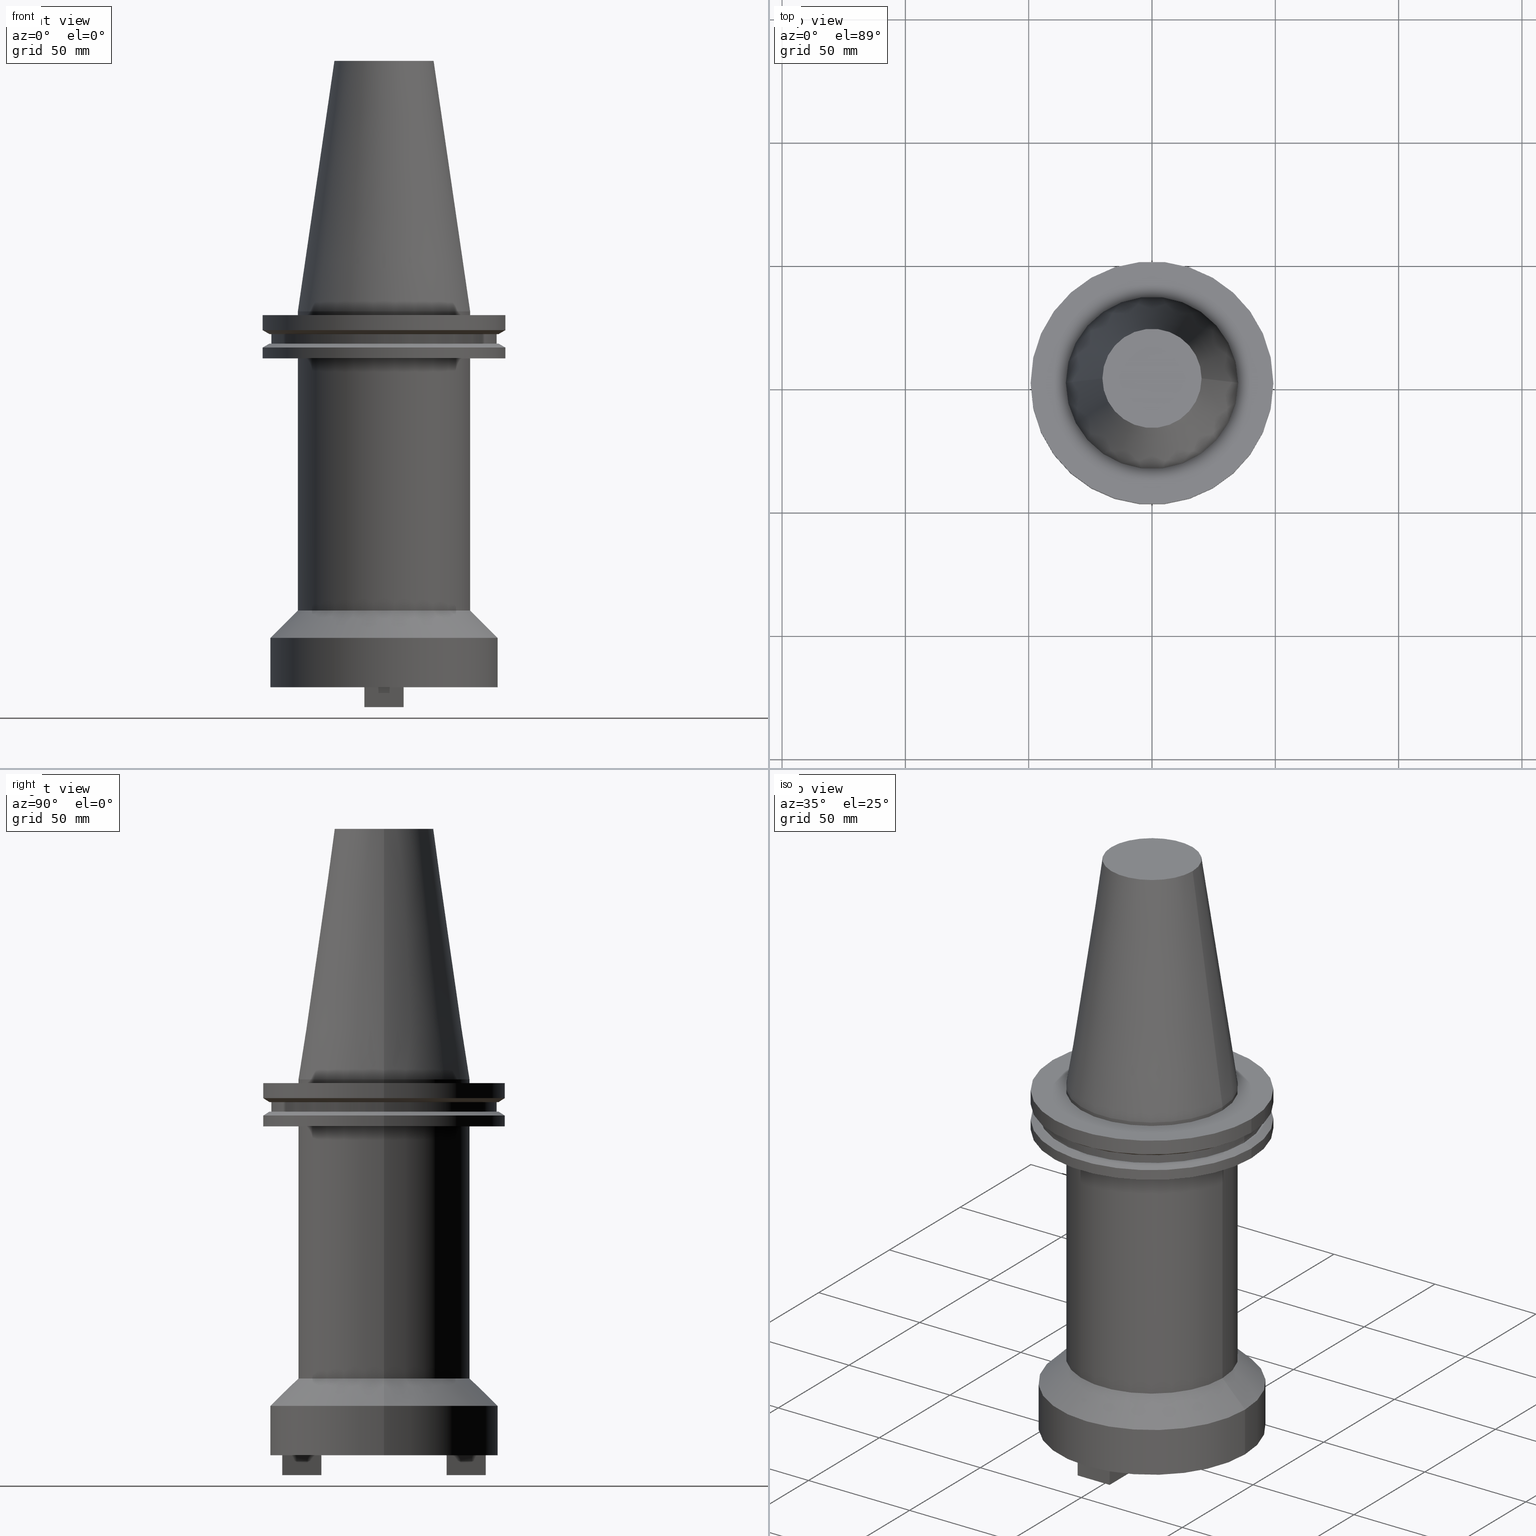
[diagram: canonical four-view strip — front | top / right | iso, engineering-drawing reading convention]
A machine part, canonical four-view strip (front | top / right | iso — engineering-drawing reading convention). The complete STEP part file that produces these views, byte-faithful:
ISO-10303-21;
HEADER;
FILE_DESCRIPTION (( 'STEP AP203' ),
    '1' );
FILE_NAME ('BCV50-SMC1_500-6.stp',
    '2022-03-03T20:18:17',
    ( '' ),
    ( '' ),
    'SwSTEP 2.0',
    'SolidWorks 2021',
    '' );
FILE_SCHEMA (( 'CONFIG_CONTROL_DESIGN' ));
ENDSEC;

DATA;
#1 = CARTESIAN_POINT ( 'NONE',  ( -1.109873458181633997E-14, -25.39999999999998792, -160.4800000000000182 ) ) ;
#2 = ADVANCED_FACE ( 'NONE', ( #227 ), #561, .T. ) ;
#3 = PERSON_AND_ORGANIZATION ( #755, #236 ) ;
#4 = DIRECTION ( 'NONE',  ( 1.000000000000000000, 0.000000000000000000, 0.000000000000000000 ) ) ;
#5 = ORIENTED_EDGE ( 'NONE', *, *, #56, .F. ) ;
#6 = DIRECTION ( 'NONE',  ( -0.000000000000000000, -0.000000000000000000, 1.000000000000000000 ) ) ;
#7 = COORDINATED_UNIVERSAL_TIME_OFFSET ( 6, 0, .BEHIND. ) ;
#8 = EDGE_CURVE ( 'NONE', #536, #703, #349, .T. ) ;
#9 = CARTESIAN_POINT ( 'NONE',  ( 7.939999999999999503, -1.734723475976807094E-15, -160.4800000000000182 ) ) ;
#10 = AXIS2_PLACEMENT_3D ( 'NONE', #1016, #355, #258 ) ;
#11 = ORIENTED_EDGE ( 'NONE', *, *, #366, .T. ) ;
#12 = LINE ( 'NONE', #1040, #219 ) ;
#13 = EDGE_LOOP ( 'NONE', ( #690, #1100, #1036, #373 ) ) ;
#14 = DIRECTION ( 'NONE',  ( -1.000000000000000000, 0.000000000000000000, 0.000000000000000000 ) ) ;
#15 = EDGE_CURVE ( 'NONE', #113, #747, #1108, .T. ) ;
#16 = EDGE_LOOP ( 'NONE', ( #266, #713, #793, #708 ) ) ;
#17 = AXIS2_PLACEMENT_3D ( 'NONE', #347, #1099, #771 ) ;
#18 = VECTOR ( 'NONE', #820, 1000.000000000000000 ) ;
#19 = ADVANCED_FACE ( 'NONE', ( #844 ), #85, .F. ) ;
#20 = ORIENTED_EDGE ( 'NONE', *, *, #80, .F. ) ;
#21 = CARTESIAN_POINT ( 'NONE',  ( 0.000000000000000000, 0.000000000000000000, -7.602389855251287187 ) ) ;
#22 = DIRECTION ( 'NONE',  ( 1.000000000000000000, 0.000000000000000000, 0.000000000000000000 ) ) ;
#23 = EDGE_LOOP ( 'NONE', ( #479, #548, #897, #797 ) ) ;
#24 = EDGE_CURVE ( 'NONE', #950, #369, #304, .T. ) ;
#25 = CARTESIAN_POINT ( 'NONE',  ( 8.729999999999998650, 0.000000000000000000, 0.000000000000000000 ) ) ;
#26 = ORIENTED_EDGE ( 'NONE', *, *, #992, .T. ) ;
#27 = LINE ( 'NONE', #697, #1069 ) ;
#28 = CARTESIAN_POINT ( 'NONE',  ( 0.000000000000000000, 0.000000000000000000, -7.602389855251287187 ) ) ;
#29 = ORIENTED_EDGE ( 'NONE', *, *, #168, .F. ) ;
#30 = CARTESIAN_POINT ( 'NONE',  ( 0.000000000000000000, 46.43919780457007818, -9.204999999999998295 ) ) ;
#31 = VERTEX_POINT ( 'NONE', #851 ) ;
#32 = EDGE_LOOP ( 'NONE', ( #883, #624, #377, #197 ) ) ;
#33 = DIRECTION ( 'NONE',  ( -0.000000000000000000, -0.000000000000000000, 1.000000000000000000 ) ) ;
#34 = CARTESIAN_POINT ( 'NONE',  ( 0.000000000000000000, 0.000000000000000000, -35.00000000000000000 ) ) ;
#35 = DATE_AND_TIME ( #563, #270 ) ;
#36 = ORIENTED_EDGE ( 'NONE', *, *, #311, .T. ) ;
#37 = LINE ( 'NONE', #43, #672 ) ;
#38 = ORIENTED_EDGE ( 'NONE', *, *, #265, .F. ) ;
#39 = CIRCLE ( 'NONE', #444, 49.21499999999999631 ) ;
#40 = CIRCLE ( 'NONE', #473, 34.92499999999999005 ) ;
#41 = DIRECTION ( 'NONE',  ( -0.000000000000000000, -0.000000000000000000, 1.000000000000000000 ) ) ;
#42 = DIRECTION ( 'NONE',  ( -1.000000000000000000, 0.000000000000000000, -0.000000000000000000 ) ) ;
#43 = CARTESIAN_POINT ( 'NONE',  ( -46.04999999999999716, 0.000000000000000000, -132.3949999999999534 ) ) ;
#44 = EDGE_CURVE ( 'NONE', #182, #369, #508, .T. ) ;
#45 = ORIENTED_EDGE ( 'NONE', *, *, #128, .F. ) ;
#46 = ORIENTED_EDGE ( 'NONE', *, *, #168, .T. ) ;
#47 = DIRECTION ( 'NONE',  ( 1.000000000000000000, 0.000000000000000000, 0.000000000000000000 ) ) ;
#48 = DESIGN_CONTEXT ( 'detailed design', #202, 'design' ) ;
#49 = DIRECTION ( 'NONE',  ( -0.000000000000000000, -0.000000000000000000, 1.000000000000000000 ) ) ;
#50 = DIRECTION ( 'NONE',  ( 1.000000000000000000, 0.000000000000000000, 0.000000000000000000 ) ) ;
#51 = VERTEX_POINT ( 'NONE', #104 ) ;
#52 = CARTESIAN_POINT ( 'NONE',  ( -49.21499999999998920, 6.027099222003697037E-15, -19.04999999999999716 ) ) ;
#53 = EDGE_LOOP ( 'NONE', ( #688, #1050 ) ) ;
#54 = ADVANCED_FACE ( 'NONE', ( #692 ), #426, .T. ) ;
#55 = CYLINDRICAL_SURFACE ( 'NONE', #959, 46.04999999999999716 ) ;
#56 = EDGE_CURVE ( 'NONE', #51, #932, #89, .T. ) ;
#57 = CIRCLE ( 'NONE', #178, 46.43919780457007818 ) ;
#58 = ORIENTED_EDGE ( 'NONE', *, *, #683, .F. ) ;
#59 = APPROVAL_PERSON_ORGANIZATION ( #568, #843, #153 ) ;
#60 = DIRECTION ( 'NONE',  ( 0.000000000000000000, 1.000000000000000000, 0.000000000000000000 ) ) ;
#61 = ORIENTED_EDGE ( 'NONE', *, *, #234, .F. ) ;
#62 = VERTEX_POINT ( 'NONE', #856 ) ;
#63 = DIRECTION ( 'NONE',  ( -1.000000000000000000, 0.000000000000000000, 0.000000000000000000 ) ) ;
#64 = FACE_OUTER_BOUND ( 'NONE', #352, .T. ) ;
#65 = CYLINDRICAL_SURFACE ( 'NONE', #826, 45.64500000000000313 ) ;
#66 = CARTESIAN_POINT ( 'NONE',  ( 7.939999999999995950, 1.734723475976805714E-15, -160.4800000000000182 ) ) ;
#67 = CARTESIAN_POINT ( 'NONE',  ( 0.000000000000000000, 0.000000000000000000, -19.04999999999999716 ) ) ;
#68 = CARTESIAN_POINT ( 'NONE',  ( 0.000000000000000000, 0.000000000000000000, -14.65761014474876944 ) ) ;
#69 = DIRECTION ( 'NONE',  ( 0.000000000000000000, -0.000000000000000000, 1.000000000000000000 ) ) ;
#70 = EDGE_CURVE ( 'NONE', #51, #467, #687, .T. ) ;
#71 = CIRCLE ( 'NONE', #924, 45.64500000000000313 ) ;
#72 = EDGE_LOOP ( 'NONE', ( #121, #38, #475, #914 ) ) ;
#73 = FACE_OUTER_BOUND ( 'NONE', #736, .T. ) ;
#74 = VERTEX_POINT ( 'NONE', #506 ) ;
#75 = CARTESIAN_POINT ( 'NONE',  ( -34.92499999999999005, 4.277078946022130098E-15, 101.5999999999999943 ) ) ;
#76 = LINE ( 'NONE', #148, #18 ) ;
#77 = VECTOR ( 'NONE', #484, 999.9999999999998863 ) ;
#78 = DIRECTION ( 'NONE',  ( -1.000000000000000000, -4.369580544022185212E-16, 0.000000000000000000 ) ) ;
#79 = LOCAL_TIME ( 14, 18, 17.00000000000000000, #658 ) ;
#80 = EDGE_CURVE ( 'NONE', #385, #536, #848, .T. ) ;
#81 = ORIENTED_EDGE ( 'NONE', *, *, #720, .F. ) ;
#82 = PRODUCT ( 'BCV50-SMC1_500-6', 'BCV50-SMC1_500-6', '', ( #553 ) ) ;
#83 = VERTEX_POINT ( 'NONE', #341 ) ;
#84 = DIRECTION ( 'NONE',  ( -1.000000000000000000, -4.369580544022185705E-16, 0.000000000000000000 ) ) ;
#85 = PLANE ( 'NONE',  #1065 ) ;
#86 = EDGE_CURVE ( 'NONE', #784, #857, #71, .T. ) ;
#87 = ORIENTED_EDGE ( 'NONE', *, *, #296, .F. ) ;
#88 = CYLINDRICAL_SURFACE ( 'NONE', #741, 49.21499999999998920 ) ;
#89 = CIRCLE ( 'NONE', #127, 46.43919780457007818 ) ;
#90 = CARTESIAN_POINT ( 'NONE',  ( 7.939999999999995950, 1.734723475976805714E-15, -152.4000000000000057 ) ) ;
#91 = EDGE_CURVE ( 'NONE', #399, #385, #264, .T. ) ;
#92 = CARTESIAN_POINT ( 'NONE',  ( -1.803762848572357623E-14, 41.27999999999998693, -160.4800000000000182 ) ) ;
#93 = AXIS2_PLACEMENT_3D ( 'NONE', #461, #374, #717 ) ;
#94 = CARTESIAN_POINT ( 'NONE',  ( -49.21499999999999631, 6.027099222003697826E-15, 101.5999999999999943 ) ) ;
#95 = APPROVAL_PERSON_ORGANIZATION ( #847, #728, #678 ) ;
#96 = CYLINDRICAL_SURFACE ( 'NONE', #664, 8.729999999999998650 ) ;
#97 = APPROVAL_STATUS ( 'not_yet_approved' ) ;
#98 = CARTESIAN_POINT ( 'NONE',  ( 7.939999999999987068, 41.27999999999999403, -160.4800000000000182 ) ) ;
#99 = ORIENTED_EDGE ( 'NONE', *, *, #600, .F. ) ;
#100 = CARTESIAN_POINT ( 'NONE',  ( -1.109873458181633997E-14, -25.39999999999998792, -152.4000000000000057 ) ) ;
#101 = CIRCLE ( 'NONE', #249, 45.64500000000000313 ) ;
#102 = EDGE_CURVE ( 'NONE', #83, #642, #783, .T. ) ;
#103 = ORIENTED_EDGE ( 'NONE', *, *, #817, .T. ) ;
#104 = CARTESIAN_POINT ( 'NONE',  ( 46.43919780457007818, 5.857130358318725715E-15, -13.05499999999999794 ) ) ;
#105 = EDGE_CURVE ( 'NONE', #790, #1039, #1105, .T. ) ;
#106 = VECTOR ( 'NONE', #175, 1000.000000000000000 ) ;
#107 = ORIENTED_EDGE ( 'NONE', *, *, #389, .F. ) ;
#108 = CARTESIAN_POINT ( 'NONE',  ( 45.64500000000000313, 0.000000000000000000, 101.5999999999999943 ) ) ;
#109 = APPROVAL_DATE_TIME ( #865, #843 ) ;
#110 = CARTESIAN_POINT ( 'NONE',  ( 0.000000000000000000, 0.000000000000000000, -152.4000000000000057 ) ) ;
#111 = AXIS2_PLACEMENT_3D ( 'NONE', #92, #517, #78 ) ;
#112 = ADVANCED_FACE ( 'NONE', ( #1020 ), #439, .T. ) ;
#113 = VERTEX_POINT ( 'NONE', #337 ) ;
#114 =( GEOMETRIC_REPRESENTATION_CONTEXT ( 3 ) GLOBAL_UNCERTAINTY_ASSIGNED_CONTEXT ( ( #535 ) ) GLOBAL_UNIT_ASSIGNED_CONTEXT ( ( #1068, #575, #409 ) ) REPRESENTATION_CONTEXT ( 'NONE', 'WORKASPACE' ) );
#115 = CC_DESIGN_APPROVAL ( #902, ( #1073 ) ) ;
#116 = DIRECTION ( 'NONE',  ( -0.000000000000000000, -0.000000000000000000, 1.000000000000000000 ) ) ;
#117 = ORIENTED_EDGE ( 'NONE', *, *, #343, .F. ) ;
#118 = FACE_BOUND ( 'NONE', #556, .T. ) ;
#119 = PLANE ( 'NONE',  #1070 ) ;
#120 = DIRECTION ( 'NONE',  ( 1.000000000000000000, 0.000000000000000000, 0.000000000000000000 ) ) ;
#121 = ORIENTED_EDGE ( 'NONE', *, *, #80, .T. ) ;
#122 = ORIENTED_EDGE ( 'NONE', *, *, #458, .F. ) ;
#123 = DIRECTION ( 'NONE',  ( -0.000000000000000000, -0.000000000000000000, 1.000000000000000000 ) ) ;
#124 = DIRECTION ( 'NONE',  ( -0.000000000000000000, -0.000000000000000000, 1.000000000000000000 ) ) ;
#125 = CARTESIAN_POINT ( 'NONE',  ( 0.000000000000000000, 0.000000000000000000, 0.000000000000000000 ) ) ;
#126 = ORIENTED_EDGE ( 'NONE', *, *, #173, .T. ) ;
#127 = AXIS2_PLACEMENT_3D ( 'NONE', #773, #937, #345 ) ;
#128 = EDGE_CURVE ( 'NONE', #320, #331, #767, .T. ) ;
#129 = ORIENTED_EDGE ( 'NONE', *, *, #533, .F. ) ;
#130 = LINE ( 'NONE', #100, #414 ) ;
#131 = CARTESIAN_POINT ( 'NONE',  ( 7.939999999999994174, -25.39999999999999147, -160.4800000000000182 ) ) ;
#132 = EDGE_LOOP ( 'NONE', ( #103, #465, #442, #724 ) ) ;
#133 = AXIS2_PLACEMENT_3D ( 'NONE', #438, #210, #294 ) ;
#134 = APPROVAL_PERSON_ORGANIZATION ( #3, #902, #179 ) ;
#135 = ADVANCED_FACE ( 'NONE', ( #1010 ), #523, .T. ) ;
#136 = PLANE ( 'NONE',  #651 ) ;
#137 = EDGE_LOOP ( 'NONE', ( #616, #463, #346, #429 ) ) ;
#138 = ORIENTED_EDGE ( 'NONE', *, *, #566, .T. ) ;
#139 = ORIENTED_EDGE ( 'NONE', *, *, #763, .F. ) ;
#140 = CARTESIAN_POINT ( 'NONE',  ( -7.940000000000007496, 41.27999999999998693, -160.4800000000000182 ) ) ;
#141 = CC_DESIGN_PERSON_AND_ORGANIZATION_ASSIGNMENT ( #146, #731, ( #555 ) ) ;
#142 = CARTESIAN_POINT ( 'NONE',  ( 34.92499999999999005, 4.277078946022130098E-15, 0.000000000000000000 ) ) ;
#143 = AXIS2_PLACEMENT_3D ( 'NONE', #216, #286, #22 ) ;
#144 = ADVANCED_FACE ( 'NONE', ( #503 ), #1090, .T. ) ;
#145 = LINE ( 'NONE', #650, #1096 ) ;
#146 = PERSON_AND_ORGANIZATION ( #755, #236 ) ;
#147 = FACE_BOUND ( 'NONE', #421, .T. ) ;
#148 = CARTESIAN_POINT ( 'NONE',  ( -49.21499999999998920, 6.027099222003697037E-15, 101.5999999999999943 ) ) ;
#149 = CARTESIAN_POINT ( 'NONE',  ( 0.000000000000000000, 0.000000000000000000, 101.5999999999999943 ) ) ;
#150 = ADVANCED_FACE ( 'NONE', ( #640 ), #350, .T. ) ;
#151 = CARTESIAN_POINT ( 'NONE',  ( -1.803762848572357308E-14, -41.27999999999998693, -160.4800000000000182 ) ) ;
#152 = CIRCLE ( 'NONE', #976, 46.43919780457007818 ) ;
#153 = APPROVAL_ROLE ( '' ) ;
#154 = CONICAL_SURFACE ( 'NONE', #665, 34.92499999999999005, 0.1448138465474119452 ) ;
#155 = CYLINDRICAL_SURFACE ( 'NONE', #995, 49.21499999999998920 ) ;
#156 = FACE_OUTER_BOUND ( 'NONE', #16, .T. ) ;
#157 = CARTESIAN_POINT ( 'NONE',  ( 49.21499999999998920, 0.000000000000000000, 101.5999999999999943 ) ) ;
#158 = ORIENTED_EDGE ( 'NONE', *, *, #821, .T. ) ;
#159 = DIRECTION ( 'NONE',  ( 1.000000000000000000, 0.000000000000000000, 0.000000000000000000 ) ) ;
#160 = CARTESIAN_POINT ( 'NONE',  ( 0.000000000000000000, 0.000000000000000000, -121.2699999999999960 ) ) ;
#161 = CARTESIAN_POINT ( 'NONE',  ( -7.940000000000009273, -25.39999999999998437, -160.4800000000000182 ) ) ;
#162 = EDGE_CURVE ( 'NONE', #888, #649, #524, .T. ) ;
#163 = VERTEX_POINT ( 'NONE', #532 ) ;
#164 = DIRECTION ( 'NONE',  ( 1.000000000000000000, 0.000000000000000000, 0.000000000000000000 ) ) ;
#165 = VERTEX_POINT ( 'NONE', #881 ) ;
#166 = AXIS2_PLACEMENT_3D ( 'NONE', #1, #342, #262 ) ;
#167 = CARTESIAN_POINT ( 'NONE',  ( -1.803762848572357623E-14, 41.27999999999998693, -160.4800000000000182 ) ) ;
#168 = EDGE_CURVE ( 'NONE', #31, #271, #37, .T. ) ;
#169 = CARTESIAN_POINT ( 'NONE',  ( 0.000000000000000000, 0.000000000000000000, -132.3949999999999534 ) ) ;
#170 = ORIENTED_EDGE ( 'NONE', *, *, #86, .T. ) ;
#171 = CARTESIAN_POINT ( 'NONE',  ( 0.000000000000000000, 49.21499999999999631, -1.499999999999992895 ) ) ;
#172 = DIRECTION ( 'NONE',  ( -1.000000000000000000, 0.000000000000000000, -0.000000000000000000 ) ) ;
#173 = EDGE_CURVE ( 'NONE', #753, #703, #1061, .T. ) ;
#174 = FACE_OUTER_BOUND ( 'NONE', #875, .T. ) ;
#175 = DIRECTION ( 'NONE',  ( -0.000000000000000000, -0.000000000000000000, 1.000000000000000000 ) ) ;
#176 = ADVANCED_FACE ( 'NONE', ( #949, #456 ), #136, .F. ) ;
#177 = CARTESIAN_POINT ( 'NONE',  ( 0.000000000000000000, 0.000000000000000000, -13.05499999999999794 ) ) ;
#178 = AXIS2_PLACEMENT_3D ( 'NONE', #1001, #1071, #312 ) ;
#179 = APPROVAL_ROLE ( '' ) ;
#180 = DIRECTION ( 'NONE',  ( 0.8660254037844169472, 1.060575238724880168E-16, -0.5000000000000375255 ) ) ;
#181 = EDGE_CURVE ( 'NONE', #31, #182, #186, .T. ) ;
#182 = VERTEX_POINT ( 'NONE', #446 ) ;
#183 = FACE_OUTER_BOUND ( 'NONE', #13, .T. ) ;
#184 = EDGE_LOOP ( 'NONE', ( #641, #1080 ) ) ;
#185 = DIRECTION ( 'NONE',  ( -0.000000000000000000, -0.000000000000000000, 1.000000000000000000 ) ) ;
#186 = CIRCLE ( 'NONE', #1083, 34.92499999999999716 ) ;
#187 = EDGE_LOOP ( 'NONE', ( #673, #472, #357, #836 ) ) ;
#188 = LINE ( 'NONE', #108, #680 ) ;
#189 = AXIS2_PLACEMENT_3D ( 'NONE', #507, #765, #1017 ) ;
#190 = DIRECTION ( 'NONE',  ( 1.000000000000000000, 0.000000000000000000, 0.000000000000000000 ) ) ;
#191 = EDGE_CURVE ( 'NONE', #812, #534, #948, .T. ) ;
#192 = CARTESIAN_POINT ( 'NONE',  ( 0.000000000000000000, 0.000000000000000000, 0.000000000000000000 ) ) ;
#193 = EDGE_LOOP ( 'NONE', ( #706, #478 ) ) ;
#194 = VECTOR ( 'NONE', #180, 1000.000000000000114 ) ;
#195 = VERTEX_POINT ( 'NONE', #476 ) ;
#196 = PLANE ( 'NONE',  #428 ) ;
#197 = ORIENTED_EDGE ( 'NONE', *, *, #1006, .F. ) ;
#198 = DIRECTION ( 'NONE',  ( 2.184790272011092360E-16, 1.000000000000000000, 0.000000000000000000 ) ) ;
#199 = AXIS2_PLACEMENT_3D ( 'NONE', #28, #879, #864 ) ;
#200 = DIRECTION ( 'NONE',  ( 1.000000000000000000, 0.000000000000000000, 0.000000000000000000 ) ) ;
#201 = VERTEX_POINT ( 'NONE', #867 ) ;
#202 = APPLICATION_CONTEXT ( 'configuration controlled 3d designs of mechanical parts and assemblies' ) ;
#203 = ORIENTED_EDGE ( 'NONE', *, *, #1018, .F. ) ;
#204 = CARTESIAN_POINT ( 'NONE',  ( 7.939999999999990621, 25.39999999999998792, -160.4800000000000182 ) ) ;
#205 = DIRECTION ( 'NONE',  ( -1.092395136005546426E-16, -1.000000000000000000, 0.000000000000000000 ) ) ;
#206 = VERTEX_POINT ( 'NONE', #279 ) ;
#207 = ADVANCED_FACE ( 'NONE', ( #370 ), #874, .F. ) ;
#208 = CARTESIAN_POINT ( 'NONE',  ( -7.940000000000007496, 41.27999999999998693, -160.4800000000000182 ) ) ;
#209 = ORIENTED_EDGE ( 'NONE', *, *, #654, .T. ) ;
#210 = DIRECTION ( 'NONE',  ( 0.000000000000000000, 0.000000000000000000, -1.000000000000000000 ) ) ;
#211 = CARTESIAN_POINT ( 'NONE',  ( 7.939999999999990621, 25.39999999999998792, -160.4800000000000182 ) ) ;
#212 = EDGE_LOOP ( 'NONE', ( #966, #969, #394, #305 ) ) ;
#213 = CYLINDRICAL_SURFACE ( 'NONE', #381, 34.92499999999999716 ) ;
#214 = CARTESIAN_POINT ( 'NONE',  ( 46.43919780457007818, 0.000000000000000000, -9.204999999999991189 ) ) ;
#215 = DIRECTION ( 'NONE',  ( 0.000000000000000000, 0.000000000000000000, -1.000000000000000000 ) ) ;
#216 = CARTESIAN_POINT ( 'NONE',  ( 0.000000000000000000, 0.000000000000000000, -14.65761014474876944 ) ) ;
#217 = ORIENTED_EDGE ( 'NONE', *, *, #306, .T. ) ;
#218 = VECTOR ( 'NONE', #84, 1000.000000000000000 ) ;
#219 = VECTOR ( 'NONE', #443, 999.9999999999998863 ) ;
#220 = VECTOR ( 'NONE', #267, 1000.000000000000000 ) ;
#221 = ORIENTED_EDGE ( 'NONE', *, *, #911, .F. ) ;
#222 = CC_DESIGN_APPROVAL ( #843, ( #555 ) ) ;
#223 = DIRECTION ( 'NONE',  ( 1.000000000000000000, 0.000000000000000000, 0.000000000000000000 ) ) ;
#224 = EDGE_CURVE ( 'NONE', #165, #711, #782, .T. ) ;
#225 = EDGE_LOOP ( 'NONE', ( #1043, #802, #371, #726 ) ) ;
#226 = DIRECTION ( 'NONE',  ( -0.000000000000000000, -0.000000000000000000, 1.000000000000000000 ) ) ;
#227 = FACE_OUTER_BOUND ( 'NONE', #225, .T. ) ;
#228 = CARTESIAN_POINT ( 'NONE',  ( -1.803762848572357623E-14, 41.27999999999998693, -152.4000000000000057 ) ) ;
#229 = ORIENTED_EDGE ( 'NONE', *, *, #1018, .T. ) ;
#230 = LINE ( 'NONE', #827, #910 ) ;
#231 = CARTESIAN_POINT ( 'NONE',  ( -34.92499999999999716, 4.277078946022130887E-15, -19.04999999999999716 ) ) ;
#232 = CARTESIAN_POINT ( 'NONE',  ( -1.803762848572357308E-14, -41.27999999999998693, -160.4800000000000182 ) ) ;
#233 = LINE ( 'NONE', #570, #899 ) ;
#234 = EDGE_CURVE ( 'NONE', #957, #554, #712, .T. ) ;
#235 = ORIENTED_EDGE ( 'NONE', *, *, #892, .T. ) ;
#236 = ORGANIZATION ( 'UNSPECIFIED', 'UNSPECIFIED', '' ) ;
#237 = PLANE ( 'NONE',  #379 ) ;
#238 = CARTESIAN_POINT ( 'NONE',  ( -7.940000000000009273, 25.39999999999998792, -160.4800000000000182 ) ) ;
#239 = EDGE_LOOP ( 'NONE', ( #882, #1054, #830, #229 ) ) ;
#240 = CARTESIAN_POINT ( 'NONE',  ( -7.940000000000009273, 0.000000000000000000, -152.4000000000000057 ) ) ;
#241 = ORIENTED_EDGE ( 'NONE', *, *, #44, .F. ) ;
#242 = VECTOR ( 'NONE', #839, 1000.000000000000000 ) ;
#243 = FACE_OUTER_BOUND ( 'NONE', #289, .T. ) ;
#244 = DIRECTION ( 'NONE',  ( -0.000000000000000000, -0.000000000000000000, 1.000000000000000000 ) ) ;
#245 = EDGE_CURVE ( 'NONE', #83, #888, #794, .T. ) ;
#246 = PLANE ( 'NONE',  #254 ) ;
#247 = DIRECTION ( 'NONE',  ( 0.1443082272672999988, 1.767266086135277066E-17, -0.9895327864921755756 ) ) ;
#248 = ORIENTED_EDGE ( 'NONE', *, *, #234, .T. ) ;
#249 = AXIS2_PLACEMENT_3D ( 'NONE', #309, #1081, #922 ) ;
#250 = AXIS2_PLACEMENT_3D ( 'NONE', #684, #787, #14 ) ;
#251 = DIRECTION ( 'NONE',  ( 1.000000000000000000, 0.000000000000000000, 0.000000000000000000 ) ) ;
#252 = DIRECTION ( 'NONE',  ( 0.000000000000000000, 0.000000000000000000, -1.000000000000000000 ) ) ;
#253 = AXIS2_PLACEMENT_3D ( 'NONE', #919, #318, #223 ) ;
#254 = AXIS2_PLACEMENT_3D ( 'NONE', #232, #653, #982 ) ;
#255 = PLANE ( 'NONE',  #111 ) ;
#256 = EDGE_CURVE ( 'NONE', #467, #520, #333, .T. ) ;
#257 = APPROVAL_DATE_TIME ( #1015, #728 ) ;
#258 = DIRECTION ( 'NONE',  ( 1.000000000000000000, 0.000000000000000000, 0.000000000000000000 ) ) ;
#259 = DIRECTION ( 'NONE',  ( -0.000000000000000000, -0.000000000000000000, 1.000000000000000000 ) ) ;
#260 = PERSON_AND_ORGANIZATION_ROLE ( 'design_owner' ) ;
#261 = CARTESIAN_POINT ( 'NONE',  ( 0.000000000000000000, 0.000000000000000000, -132.3949999999999534 ) ) ;
#262 = DIRECTION ( 'NONE',  ( -1.000000000000000000, 4.369580544022182254E-16, 0.000000000000000000 ) ) ;
#263 = COORDINATED_UNIVERSAL_TIME_OFFSET ( 6, 0, .BEHIND. ) ;
#264 = LINE ( 'NONE', #98, #749 ) ;
#265 = EDGE_CURVE ( 'NONE', #613, #536, #1035, .T. ) ;
#266 = ORIENTED_EDGE ( 'NONE', *, *, #8, .T. ) ;
#267 = DIRECTION ( 'NONE',  ( -1.000000000000000000, 4.369580544022184719E-16, 0.000000000000000000 ) ) ;
#268 = VECTOR ( 'NONE', #978, 1000.000000000000000 ) ;
#269 = DIRECTION ( 'NONE',  ( -0.000000000000000000, -0.000000000000000000, 1.000000000000000000 ) ) ;
#270 = LOCAL_TIME ( 14, 18, 17.00000000000000000, #7 ) ;
#271 = VERTEX_POINT ( 'NONE', #630 ) ;
#272 = DIRECTION ( 'NONE',  ( 0.000000000000000000, 0.000000000000000000, -1.000000000000000000 ) ) ;
#273 = LINE ( 'NONE', #538, #470 ) ;
#274 = DIRECTION ( 'NONE',  ( -0.000000000000000000, -0.000000000000000000, 1.000000000000000000 ) ) ;
#275 = ORIENTED_EDGE ( 'NONE', *, *, #303, .T. ) ;
#276 = CARTESIAN_POINT ( 'NONE',  ( 0.000000000000000000, 0.000000000000000000, -35.00000000000000000 ) ) ;
#277 = ORIENTED_EDGE ( 'NONE', *, *, #489, .F. ) ;
#278 = DIRECTION ( 'NONE',  ( -1.000000000000000000, 4.369580544022182747E-16, 0.000000000000000000 ) ) ;
#279 = CARTESIAN_POINT ( 'NONE',  ( 45.64500000000000313, 0.000000000000000000, -9.204999999999991189 ) ) ;
#280 = EDGE_LOOP ( 'NONE', ( #235, #1004, #762, #241 ) ) ;
#281 = DIRECTION ( 'NONE',  ( -0.000000000000000000, -0.000000000000000000, 1.000000000000000000 ) ) ;
#282 = ORIENTED_EDGE ( 'NONE', *, *, #801, .T. ) ;
#283 = FACE_OUTER_BOUND ( 'NONE', #584, .T. ) ;
#284 = DIRECTION ( 'NONE',  ( -0.000000000000000000, -0.000000000000000000, 1.000000000000000000 ) ) ;
#285 = APPROVAL_DATE_TIME ( #35, #902 ) ;
#286 = DIRECTION ( 'NONE',  ( -0.000000000000000000, -0.000000000000000000, 1.000000000000000000 ) ) ;
#287 = ADVANCED_FACE ( 'NONE', ( #378 ), #295, .F. ) ;
#288 = AXIS2_PLACEMENT_3D ( 'NONE', #391, #977, #906 ) ;
#289 = EDGE_LOOP ( 'NONE', ( #639, #544, #721, #297 ) ) ;
#290 = AXIS2_PLACEMENT_3D ( 'NONE', #451, #965, #365 ) ;
#291 = CC_DESIGN_SECURITY_CLASSIFICATION ( #555, ( #1073 ) ) ;
#292 = FACE_OUTER_BOUND ( 'NONE', #280, .T. ) ;
#293 = EDGE_LOOP ( 'NONE', ( #659, #217, #527, #407 ) ) ;
#294 = DIRECTION ( 'NONE',  ( -1.000000000000000000, 0.000000000000000000, -0.000000000000000000 ) ) ;
#295 = PLANE ( 'NONE',  #920 ) ;
#296 = EDGE_CURVE ( 'NONE', #642, #649, #635, .T. ) ;
#297 = ORIENTED_EDGE ( 'NONE', *, *, #558, .T. ) ;
#298 = DIRECTION ( 'NONE',  ( -1.000000000000000000, 0.000000000000000000, 0.000000000000000000 ) ) ;
#299 = FACE_OUTER_BOUND ( 'NONE', #384, .T. ) ;
#300 = AXIS2_PLACEMENT_3D ( 'NONE', #192, #955, #120 ) ;
#301 = DIRECTION ( 'NONE',  ( 1.000000000000000000, 0.000000000000000000, 0.000000000000000000 ) ) ;
#302 = VERTEX_POINT ( 'NONE', #811 ) ;
#303 = EDGE_CURVE ( 'NONE', #302, #206, #101, .T. ) ;
#304 = CIRCLE ( 'NONE', #1011, 34.92499999999999716 ) ;
#305 = ORIENTED_EDGE ( 'NONE', *, *, #311, .F. ) ;
#306 = EDGE_CURVE ( 'NONE', #201, #812, #481, .T. ) ;
#307 = FACE_OUTER_BOUND ( 'NONE', #993, .T. ) ;
#308 = CARTESIAN_POINT ( 'NONE',  ( -34.92499999999999005, 0.000000000000000000, 0.000000000000000000 ) ) ;
#309 = CARTESIAN_POINT ( 'NONE',  ( 0.000000000000000000, 0.000000000000000000, -9.204999999999991189 ) ) ;
#310 = AXIS2_PLACEMENT_3D ( 'NONE', #634, #953, #614 ) ;
#311 = EDGE_CURVE ( 'NONE', #320, #467, #644, .T. ) ;
#312 = DIRECTION ( 'NONE',  ( 1.000000000000000000, 0.000000000000000000, 0.000000000000000000 ) ) ;
#313 = DIRECTION ( 'NONE',  ( 1.000000000000000000, 0.000000000000000000, 0.000000000000000000 ) ) ;
#314 = CARTESIAN_POINT ( 'NONE',  ( 0.000000000000000000, 0.000000000000000000, 101.5999999999999943 ) ) ;
#315 = ORIENTED_EDGE ( 'NONE', *, *, #1030, .T. ) ;
#316 = EDGE_LOOP ( 'NONE', ( #45, #999 ) ) ;
#317 = FACE_OUTER_BOUND ( 'NONE', #132, .T. ) ;
#318 = DIRECTION ( 'NONE',  ( -0.000000000000000000, -0.000000000000000000, 1.000000000000000000 ) ) ;
#319 = FACE_OUTER_BOUND ( 'NONE', #619, .T. ) ;
#320 = VERTEX_POINT ( 'NONE', #740 ) ;
#321 = DIRECTION ( 'NONE',  ( -0.000000000000000000, -0.000000000000000000, 1.000000000000000000 ) ) ;
#322 = DIRECTION ( 'NONE',  ( 1.000000000000000000, -0.000000000000000000, 0.000000000000000000 ) ) ;
#323 = CARTESIAN_POINT ( 'NONE',  ( 34.92499999999999005, 0.000000000000000000, -1.499999999999987566 ) ) ;
#324 = ORIENTED_EDGE ( 'NONE', *, *, #566, .F. ) ;
#325 = CARTESIAN_POINT ( 'NONE',  ( 7.939999999999987068, 41.27999999999999403, -152.4000000000000057 ) ) ;
#326 = ADVANCED_FACE ( 'NONE', ( #583 ), #1074, .T. ) ;
#327 = CONICAL_SURFACE ( 'NONE', #625, 46.43919780457007818, 1.047197551196575205 ) ;
#328 = LOCAL_TIME ( 14, 18, 17.00000000000000000, #263 ) ;
#329 = LINE ( 'NONE', #308, #77 ) ;
#330 = CARTESIAN_POINT ( 'NONE',  ( 0.000000000000000000, 0.000000000000000000, 101.5999999999999801 ) ) ;
#331 = VERTEX_POINT ( 'NONE', #52 ) ;
#332 = CARTESIAN_POINT ( 'NONE',  ( 0.000000000000000000, 0.000000000000000000, 101.5999999999999943 ) ) ;
#333 = CIRCLE ( 'NONE', #143, 49.21499999999998920 ) ;
#334 = CC_DESIGN_PERSON_AND_ORGANIZATION_ASSIGNMENT ( #905, #799, ( #1073 ) ) ;
#335 = EDGE_CURVE ( 'NONE', #163, #271, #991, .T. ) ;
#336 = DIRECTION ( 'NONE',  ( -0.000000000000000000, -0.000000000000000000, 1.000000000000000000 ) ) ;
#337 = CARTESIAN_POINT ( 'NONE',  ( -49.21500000000000341, 6.027099222003699404E-15, -7.602389855251287187 ) ) ;
#338 = CIRCLE ( 'NONE', #486, 8.730000000000009308 ) ;
#339 = ORIENTED_EDGE ( 'NONE', *, *, #162, .T. ) ;
#340 = LINE ( 'NONE', #603, #824 ) ;
#341 = CARTESIAN_POINT ( 'NONE',  ( 7.939999999999990621, -41.27999999999999403, -160.4800000000000182 ) ) ;
#342 = DIRECTION ( 'NONE',  ( 4.369580544022182254E-16, 1.000000000000000000, 0.000000000000000000 ) ) ;
#343 = EDGE_CURVE ( 'NONE', #455, #1046, #233, .T. ) ;
#344 = APPLICATION_PROTOCOL_DEFINITION ( 'international standard', 'config_control_design', 1994, #202 ) ;
#345 = DIRECTION ( 'NONE',  ( 1.000000000000000000, 0.000000000000000000, 0.000000000000000000 ) ) ;
#346 = ORIENTED_EDGE ( 'NONE', *, *, #648, .T. ) ;
#347 = CARTESIAN_POINT ( 'NONE',  ( 0.000000000000000000, 0.000000000000000000, 101.5999999999999943 ) ) ;
#348 = CLOSED_SHELL ( 'NONE', ( #1048, #144, #450, #482, #434, #956, #927, #150, #693, #1024, #975, #112, #573, #358, #845, #448, #1101, #612, #835, #176, #671, #326, #509, #351, #207, #135, #2, #686, #19, #1056, #499, #287, #925, #756, #515, #876, #866, #701, #54 ) ) ;
#349 = LINE ( 'NONE', #933, #656 ) ;
#350 = CONICAL_SURFACE ( 'NONE', #934, 49.21499999999998920, 1.047197551196554333 ) ;
#351 = ADVANCED_FACE ( 'NONE', ( #73 ), #411, .T. ) ;
#352 = EDGE_LOOP ( 'NONE', ( #542, #61, #99, #387 ) ) ;
#353 = DIRECTION ( 'NONE',  ( 1.000000000000000000, 0.000000000000000000, 0.000000000000000000 ) ) ;
#354 = CIRCLE ( 'NONE', #500, 46.04999999999999716 ) ;
#355 = DIRECTION ( 'NONE',  ( -0.000000000000000000, -0.000000000000000000, 1.000000000000000000 ) ) ;
#356 = CIRCLE ( 'NONE', #627, 34.92499999999999716 ) ;
#357 = ORIENTED_EDGE ( 'NONE', *, *, #102, .T. ) ;
#358 = ADVANCED_FACE ( 'NONE', ( #319 ), #393, .T. ) ;
#359 = FACE_OUTER_BOUND ( 'NONE', #293, .T. ) ;
#360 = EDGE_LOOP ( 'NONE', ( #457, #1034, #36, #805 ) ) ;
#361 = CARTESIAN_POINT ( 'NONE',  ( -34.92499999999999005, 0.000000000000000000, 0.000000000000000000 ) ) ;
#362 = CARTESIAN_POINT ( 'NONE',  ( 7.939999999999999503, -1.734723475976807094E-15, -152.4000000000000057 ) ) ;
#363 = ORIENTED_EDGE ( 'NONE', *, *, #1007, .F. ) ;
#364 = MANIFOLD_SOLID_BREP ( 'Boss-Extrude1', #348 ) ;
#365 = DIRECTION ( 'NONE',  ( 1.000000000000000000, 0.000000000000000000, 0.000000000000000000 ) ) ;
#366 = EDGE_CURVE ( 'NONE', #838, #113, #748, .T. ) ;
#367 = EDGE_LOOP ( 'NONE', ( #419, #700, #576, #29 ) ) ;
#368 = CARTESIAN_POINT ( 'NONE',  ( 7.939999999999994174, -25.39999999999999147, -152.4000000000000057 ) ) ;
#369 = VERTEX_POINT ( 'NONE', #388 ) ;
#370 = FACE_OUTER_BOUND ( 'NONE', #526, .T. ) ;
#371 = ORIENTED_EDGE ( 'NONE', *, *, #105, .T. ) ;
#372 = DIRECTION ( 'NONE',  ( 1.000000000000000000, 0.000000000000000000, 0.000000000000000000 ) ) ;
#373 = ORIENTED_EDGE ( 'NONE', *, *, #466, .F. ) ;
#374 = DIRECTION ( 'NONE',  ( -0.000000000000000000, -0.000000000000000000, 1.000000000000000000 ) ) ;
#375 = DIRECTION ( 'NONE',  ( 1.000000000000000000, 0.000000000000000000, 0.000000000000000000 ) ) ;
#376 = EDGE_CURVE ( 'NONE', #399, #613, #485, .T. ) ;
#377 = ORIENTED_EDGE ( 'NONE', *, *, #605, .T. ) ;
#378 = FACE_OUTER_BOUND ( 'NONE', #72, .T. ) ;
#379 = AXIS2_PLACEMENT_3D ( 'NONE', #1086, #322, #660 ) ;
#380 = ORIENTED_EDGE ( 'NONE', *, *, #181, .F. ) ;
#381 = AXIS2_PLACEMENT_3D ( 'NONE', #889, #244, #401 ) ;
#382 = DIRECTION ( 'NONE',  ( 1.000000000000000000, 0.000000000000000000, 0.000000000000000000 ) ) ;
#383 = CARTESIAN_POINT ( 'NONE',  ( 0.000000000000000000, 0.000000000000000000, -14.65761014474876944 ) ) ;
#384 = EDGE_LOOP ( 'NONE', ( #1067, #497 ) ) ;
#385 = VERTEX_POINT ( 'NONE', #325 ) ;
#386 = APPLICATION_CONTEXT ( 'configuration controlled 3d designs of mechanical parts and assemblies' ) ;
#387 = ORIENTED_EDGE ( 'NONE', *, *, #343, .T. ) ;
#388 = CARTESIAN_POINT ( 'NONE',  ( 34.92499999999999716, 0.000000000000000000, -19.04999999999999716 ) ) ;
#389 = EDGE_CURVE ( 'NONE', #1046, #554, #997, .T. ) ;
#390 = DIRECTION ( 'NONE',  ( 0.000000000000000000, 0.000000000000000000, -1.000000000000000000 ) ) ;
#391 = CARTESIAN_POINT ( 'NONE',  ( 0.000000000000000000, 46.04999999999999716, -152.4000000000000057 ) ) ;
#392 = CARTESIAN_POINT ( 'NONE',  ( 34.92499999999999005, 4.277078946022130098E-15, 0.000000000000000000 ) ) ;
#393 = CYLINDRICAL_SURFACE ( 'NONE', #738, 34.92499999999999716 ) ;
#394 = ORIENTED_EDGE ( 'NONE', *, *, #256, .F. ) ;
#395 = AXIS2_PLACEMENT_3D ( 'NONE', #177, #33, #353 ) ;
#396 = CARTESIAN_POINT ( 'NONE',  ( 0.000000000000000000, 0.000000000000000000, -14.65761014474876944 ) ) ;
#397 = COORDINATED_UNIVERSAL_TIME_OFFSET ( 6, 0, .BEHIND. ) ;
#398 = FACE_OUTER_BOUND ( 'NONE', #880, .T. ) ;
#399 = VERTEX_POINT ( 'NONE', #915 ) ;
#400 = DIRECTION ( 'NONE',  ( -0.000000000000000000, -0.000000000000000000, 1.000000000000000000 ) ) ;
#401 = DIRECTION ( 'NONE',  ( 1.000000000000000000, 0.000000000000000000, 0.000000000000000000 ) ) ;
#402 = FACE_OUTER_BOUND ( 'NONE', #413, .T. ) ;
#403 = DIRECTION ( 'NONE',  ( -0.000000000000000000, -0.000000000000000000, 1.000000000000000000 ) ) ;
#404 = EDGE_CURVE ( 'NONE', #622, #201, #594, .T. ) ;
#405 = EDGE_LOOP ( 'NONE', ( #986, #380, #46, #984 ) ) ;
#406 = EDGE_LOOP ( 'NONE', ( #324, #432, #282, #655 ) ) ;
#407 = ORIENTED_EDGE ( 'NONE', *, *, #815, .F. ) ;
#408 = DIRECTION ( 'NONE',  ( 1.000000000000000000, 0.000000000000000000, 0.000000000000000000 ) ) ;
#409 =( NAMED_UNIT ( * ) SI_UNIT ( $, .STERADIAN. ) SOLID_ANGLE_UNIT ( ) );
#410 = DIRECTION ( 'NONE',  ( 1.000000000000000000, -2.184790272011092113E-16, 0.000000000000000000 ) ) ;
#411 = CYLINDRICAL_SURFACE ( 'NONE', #1076, 34.92499999999999005 ) ;
#412 = EDGE_CURVE ( 'NONE', #888, #1046, #682, .T. ) ;
#413 = EDGE_LOOP ( 'NONE', ( #770, #11, #1082, #58 ) ) ;
#414 = VECTOR ( 'NONE', #278, 1000.000000000000000 ) ;
#415 = VECTOR ( 'NONE', #729, 1000.000000000000000 ) ;
#416 = DIRECTION ( 'NONE',  ( -0.000000000000000000, -0.000000000000000000, 1.000000000000000000 ) ) ;
#417 = CARTESIAN_POINT ( 'NONE',  ( 8.729999999999998650, 0.000000000000000000, -35.00000000000000000 ) ) ;
#418 = CARTESIAN_POINT ( 'NONE',  ( -49.21499999999998920, 6.027099222003697037E-15, -14.65761014474876944 ) ) ;
#419 = ORIENTED_EDGE ( 'NONE', *, *, #892, .F. ) ;
#420 = EDGE_CURVE ( 'NONE', #399, #868, #1009, .T. ) ;
#421 = EDGE_LOOP ( 'NONE', ( #158, #126, #460, #20 ) ) ;
#422 = FACE_OUTER_BOUND ( 'NONE', #406, .T. ) ;
#423 = DIRECTION ( 'NONE',  ( -1.000000000000000000, 0.000000000000000000, 0.000000000000000000 ) ) ;
#424 = AXIS2_PLACEMENT_3D ( 'NONE', #261, #252, #587 ) ;
#425 = CARTESIAN_POINT ( 'NONE',  ( 0.000000000000000000, 0.000000000000000000, 0.000000000000000000 ) ) ;
#426 = PLANE ( 'NONE',  #547 ) ;
#427 = DIRECTION ( 'NONE',  ( -0.000000000000000000, -0.000000000000000000, 1.000000000000000000 ) ) ;
#428 = AXIS2_PLACEMENT_3D ( 'NONE', #961, #272, #529 ) ;
#429 = ORIENTED_EDGE ( 'NONE', *, *, #303, .F. ) ;
#430 = PLANE ( 'NONE',  #166 ) ;
#431 = DIRECTION ( 'NONE',  ( 0.000000000000000000, -0.000000000000000000, 1.000000000000000000 ) ) ;
#432 = ORIENTED_EDGE ( 'NONE', *, *, #629, .T. ) ;
#433 = CYLINDRICAL_SURFACE ( 'NONE', #189, 49.21499999999999631 ) ;
#434 = ADVANCED_FACE ( 'NONE', ( #609 ), #433, .T. ) ;
#435 = DIRECTION ( 'NONE',  ( -0.000000000000000000, -0.000000000000000000, 1.000000000000000000 ) ) ;
#436 = VECTOR ( 'NONE', #816, 1000.000000000000000 ) ;
#437 = EDGE_LOOP ( 'NONE', ( #221, #122 ) ) ;
#438 = CARTESIAN_POINT ( 'NONE',  ( 0.000000000000000000, 20.10819343178871321, 101.5999999999999943 ) ) ;
#439 = CONICAL_SURFACE ( 'NONE', #250, 34.92499999999999005, 0.1448138465474119452 ) ;
#440 = ORIENTED_EDGE ( 'NONE', *, *, #44, .T. ) ;
#441 = DIRECTION ( 'NONE',  ( 0.000000000000000000, 0.000000000000000000, -1.000000000000000000 ) ) ;
#442 = ORIENTED_EDGE ( 'NONE', *, *, #611, .F. ) ;
#443 = DIRECTION ( 'NONE',  ( 0.7071067811865489050, 8.659560562354950115E-17, -0.7071067811865462405 ) ) ;
#444 = AXIS2_PLACEMENT_3D ( 'NONE', #670, #427, #408 ) ;
#445 = PERSON_AND_ORGANIZATION ( #755, #236 ) ;
#446 = CARTESIAN_POINT ( 'NONE',  ( 34.92499999999999716, 0.000000000000000000, -121.2699999999999960 ) ) ;
#447 = CIRCLE ( 'NONE', #290, 49.21499999999999631 ) ;
#448 = ADVANCED_FACE ( 'NONE', ( #1103 ), #88, .T. ) ;
#449 = ORIENTED_EDGE ( 'NONE', *, *, #489, .T. ) ;
#450 = ADVANCED_FACE ( 'NONE', ( #422 ), #96, .F. ) ;
#451 = CARTESIAN_POINT ( 'NONE',  ( 0.000000000000000000, 0.000000000000000000, -1.499999999999987566 ) ) ;
#452 = ORIENTED_EDGE ( 'NONE', *, *, #412, .T. ) ;
#453 = CARTESIAN_POINT ( 'NONE',  ( -20.10819343178871321, 0.000000000000000000, 101.5999999999999801 ) ) ;
#454 = CARTESIAN_POINT ( 'NONE',  ( 0.000000000000000000, 0.000000000000000000, -160.4800000000000182 ) ) ;
#455 = VERTEX_POINT ( 'NONE', #674 ) ;
#456 = FACE_BOUND ( 'NONE', #964, .T. ) ;
#457 = ORIENTED_EDGE ( 'NONE', *, *, #918, .F. ) ;
#458 = EDGE_CURVE ( 'NONE', #838, #608, #152, .T. ) ;
#459 = VECTOR ( 'NONE', #968, 1000.000000000000000 ) ;
#460 = ORIENTED_EDGE ( 'NONE', *, *, #8, .F. ) ;
#461 = CARTESIAN_POINT ( 'NONE',  ( 0.000000000000000000, 0.000000000000000000, -1.499999999999987566 ) ) ;
#462 = CARTESIAN_POINT ( 'NONE',  ( 45.64500000000000313, 0.000000000000000000, -13.05499999999999794 ) ) ;
#463 = ORIENTED_EDGE ( 'NONE', *, *, #533, .T. ) ;
#464 = DIRECTION ( 'NONE',  ( -0.000000000000000000, -0.000000000000000000, 1.000000000000000000 ) ) ;
#465 = ORIENTED_EDGE ( 'NONE', *, *, #335, .T. ) ;
#466 = EDGE_CURVE ( 'NONE', #894, #812, #780, .T. ) ;
#467 = VERTEX_POINT ( 'NONE', #944 ) ;
#468 = DIRECTION ( 'NONE',  ( 1.000000000000000000, 0.000000000000000000, 0.000000000000000000 ) ) ;
#469 = DIRECTION ( 'NONE',  ( -0.000000000000000000, -0.000000000000000000, 1.000000000000000000 ) ) ;
#470 = VECTOR ( 'NONE', #124, 1000.000000000000000 ) ;
#471 = DIRECTION ( 'NONE',  ( 0.000000000000000000, 0.000000000000000000, 1.000000000000000000 ) ) ;
#472 = ORIENTED_EDGE ( 'NONE', *, *, #245, .F. ) ;
#473 = AXIS2_PLACEMENT_3D ( 'NONE', #702, #632, #372 ) ;
#474 = VERTEX_POINT ( 'NONE', #778 ) ;
#475 = ORIENTED_EDGE ( 'NONE', *, *, #376, .F. ) ;
#476 = CARTESIAN_POINT ( 'NONE',  ( 49.21500000000000341, 0.000000000000000000, -7.602389855251287187 ) ) ;
#477 = EDGE_CURVE ( 'NONE', #331, #320, #908, .T. ) ;
#478 = ORIENTED_EDGE ( 'NONE', *, *, #24, .T. ) ;
#479 = ORIENTED_EDGE ( 'NONE', *, *, #306, .F. ) ;
#480 = DIRECTION ( 'NONE',  ( -0.000000000000000000, -0.000000000000000000, 1.000000000000000000 ) ) ;
#481 = LINE ( 'NONE', #142, #543 ) ;
#482 = ADVANCED_FACE ( 'NONE', ( #183 ), #935, .T. ) ;
#483 = DIRECTION ( 'NONE',  ( 1.000000000000000000, 0.000000000000000000, 0.000000000000000000 ) ) ;
#484 = DIRECTION ( 'NONE',  ( -0.1443082272672999988, 0.000000000000000000, -0.9895327864921755756 ) ) ;
#485 = LINE ( 'NONE', #66, #578 ) ;
#486 = AXIS2_PLACEMENT_3D ( 'NONE', #620, #545, #468 ) ;
#487 = CONICAL_SURFACE ( 'NONE', #1053, 46.43919780457007818, 1.047197551196575205 ) ;
#488 = PLANE ( 'NONE',  #574 ) ;
#489 = EDGE_CURVE ( 'NONE', #932, #520, #1013, .T. ) ;
#490 = CARTESIAN_POINT ( 'NONE',  ( 0.000000000000000000, 0.000000000000000000, 101.5999999999999943 ) ) ;
#491 = DIRECTION ( 'NONE',  ( 1.000000000000000000, 0.000000000000000000, 0.000000000000000000 ) ) ;
#492 = DIRECTION ( 'NONE',  ( 1.000000000000000000, 0.000000000000000000, 0.000000000000000000 ) ) ;
#493 = LINE ( 'NONE', #151, #415 ) ;
#494 = PLANE ( 'NONE',  #288 ) ;
#495 = CARTESIAN_POINT ( 'NONE',  ( -45.64500000000000313, 5.589900314708094957E-15, -13.05499999999999794 ) ) ;
#496 = LINE ( 'NONE', #75, #1031 ) ;
#497 = ORIENTED_EDGE ( 'NONE', *, *, #1064, .T. ) ;
#498 = CARTESIAN_POINT ( 'NONE',  ( -46.43919780457007818, 5.687161494633754392E-15, -9.204999999999991189 ) ) ;
#499 = ADVANCED_FACE ( 'NONE', ( #691 ), #255, .T. ) ;
#500 = AXIS2_PLACEMENT_3D ( 'NONE', #1093, #569, #1078 ) ;
#501 = AXIS2_PLACEMENT_3D ( 'NONE', #67, #567, #904 ) ;
#502 = FACE_BOUND ( 'NONE', #53, .T. ) ;
#503 = FACE_OUTER_BOUND ( 'NONE', #367, .T. ) ;
#504 = DIRECTION ( 'NONE',  ( -1.000000000000000000, 0.000000000000000000, -0.000000000000000000 ) ) ;
#505 = VECTOR ( 'NONE', #205, 1000.000000000000000 ) ;
#506 = CARTESIAN_POINT ( 'NONE',  ( -7.940000000000009273, 25.39999999999998792, -160.4800000000000182 ) ) ;
#507 = CARTESIAN_POINT ( 'NONE',  ( 0.000000000000000000, 0.000000000000000000, 101.5999999999999943 ) ) ;
#508 = LINE ( 'NONE', #861, #106 ) ;
#509 = ADVANCED_FACE ( 'NONE', ( #502, #174 ), #930, .F. ) ;
#510 = VECTOR ( 'NONE', #1106, 1000.000000000000114 ) ;
#511 = AXIS2_PLACEMENT_3D ( 'NONE', #1045, #281, #971 ) ;
#512 = DIRECTION ( 'NONE',  ( -0.000000000000000000, -0.000000000000000000, 1.000000000000000000 ) ) ;
#513 = DIRECTION ( 'NONE',  ( 1.000000000000000000, 0.000000000000000000, 0.000000000000000000 ) ) ;
#514 = VECTOR ( 'NONE', #579, 1000.000000000000000 ) ;
#515 = ADVANCED_FACE ( 'NONE', ( #846 ), #430, .T. ) ;
#516 = ORIENTED_EDGE ( 'NONE', *, *, #549, .T. ) ;
#517 = DIRECTION ( 'NONE',  ( -4.369580544022185212E-16, 1.000000000000000000, 0.000000000000000000 ) ) ;
#518 = ORIENTED_EDGE ( 'NONE', *, *, #525, .T. ) ;
#519 = DIRECTION ( 'NONE',  ( -0.000000000000000000, -0.000000000000000000, 1.000000000000000000 ) ) ;
#520 = VERTEX_POINT ( 'NONE', #418 ) ;
#521 = LINE ( 'NONE', #872, #788 ) ;
#522 = CC_DESIGN_PERSON_AND_ORGANIZATION_ASSIGNMENT ( #593, #931, ( #781 ) ) ;
#523 = CONICAL_SURFACE ( 'NONE', #424, 46.04999999999999716, 0.7853981633974501664 ) ;
#524 = LINE ( 'NONE', #362, #886 ) ;
#525 = EDGE_CURVE ( 'NONE', #868, #74, #340, .T. ) ;
#526 = EDGE_LOOP ( 'NONE', ( #760, #734, #26, #715 ) ) ;
#527 = ORIENTED_EDGE ( 'NONE', *, *, #191, .T. ) ;
#528 = AXIS2_PLACEMENT_3D ( 'NONE', #171, #685, #504 ) ;
#529 = DIRECTION ( 'NONE',  ( -1.000000000000000000, 0.000000000000000000, -0.000000000000000000 ) ) ;
#530 = LOCAL_TIME ( 14, 18, 17.00000000000000000, #397 ) ;
#531 = DATE_AND_TIME ( #1041, #530 ) ;
#532 = CARTESIAN_POINT ( 'NONE',  ( -46.04999999999999716, 5.639498510073560988E-15, -152.4000000000000057 ) ) ;
#533 = EDGE_CURVE ( 'NONE', #857, #784, #869, .T. ) ;
#534 = VERTEX_POINT ( 'NONE', #361 ) ;
#535 = UNCERTAINTY_MEASURE_WITH_UNIT (LENGTH_MEASURE( 1.000000000000000082E-05 ), #1068, 'distance_accuracy_value', 'NONE');
#536 = VERTEX_POINT ( 'NONE', #704 ) ;
#537 = LINE ( 'NONE', #722, #929 ) ;
#538 = CARTESIAN_POINT ( 'NONE',  ( -45.64500000000000313, 5.589900314708094957E-15, 101.5999999999999943 ) ) ;
#539 = CALENDAR_DATE ( 2022, 3, 3 ) ;
#540 = DIRECTION ( 'NONE',  ( -1.000000000000000000, 0.000000000000000000, 0.000000000000000000 ) ) ;
#541 = CARTESIAN_POINT ( 'NONE',  ( 0.000000000000000000, 0.000000000000000000, 0.000000000000000000 ) ) ;
#542 = ORIENTED_EDGE ( 'NONE', *, *, #389, .T. ) ;
#543 = VECTOR ( 'NONE', #247, 999.9999999999998863 ) ;
#544 = ORIENTED_EDGE ( 'NONE', *, *, #420, .F. ) ;
#545 = DIRECTION ( 'NONE',  ( -0.000000000000000000, -0.000000000000000000, 1.000000000000000000 ) ) ;
#546 = DIRECTION ( 'NONE',  ( 2.184790272011091620E-16, -1.000000000000000000, 0.000000000000000000 ) ) ;
#547 = AXIS2_PLACEMENT_3D ( 'NONE', #599, #441, #172 ) ;
#548 = ORIENTED_EDGE ( 'NONE', *, *, #404, .F. ) ;
#549 = EDGE_CURVE ( 'NONE', #649, #554, #130, .T. ) ;
#550 = ORIENTED_EDGE ( 'NONE', *, *, #817, .F. ) ;
#551 = DIRECTION ( 'NONE',  ( -0.7071067811865489050, 0.000000000000000000, -0.7071067811865462405 ) ) ;
#552 = CIRCLE ( 'NONE', #199, 49.21500000000000341 ) ;
#553 = MECHANICAL_CONTEXT ( 'NONE', #386, 'mechanical' ) ;
#554 = VERTEX_POINT ( 'NONE', #885 ) ;
#555 = SECURITY_CLASSIFICATION ( '', '', #743 ) ;
#556 = EDGE_LOOP ( 'NONE', ( #808, #129 ) ) ;
#557 = DIRECTION ( 'NONE',  ( -0.000000000000000000, -0.000000000000000000, 1.000000000000000000 ) ) ;
#558 = EDGE_CURVE ( 'NONE', #613, #74, #521, .T. ) ;
#559 = ORIENTED_EDGE ( 'NONE', *, *, #102, .F. ) ;
#560 = DIRECTION ( 'NONE',  ( 1.000000000000000000, 0.000000000000000000, 0.000000000000000000 ) ) ;
#561 = CYLINDRICAL_SURFACE ( 'NONE', #601, 46.04999999999999716 ) ;
#562 = DIRECTION ( 'NONE',  ( 1.000000000000000000, 0.000000000000000000, 0.000000000000000000 ) ) ;
#563 = CALENDAR_DATE ( 2022, 3, 3 ) ;
#564 = CARTESIAN_POINT ( 'NONE',  ( -46.43919780457007818, 5.857130358318727293E-15, -9.204999999999991189 ) ) ;
#565 = EDGE_LOOP ( 'NONE', ( #339, #516, #107, #916 ) ) ;
#566 = EDGE_CURVE ( 'NONE', #711, #165, #338, .T. ) ;
#567 = DIRECTION ( 'NONE',  ( -0.000000000000000000, -0.000000000000000000, 1.000000000000000000 ) ) ;
#568 = PERSON_AND_ORGANIZATION ( #755, #236 ) ;
#569 = DIRECTION ( 'NONE',  ( -0.000000000000000000, -0.000000000000000000, 1.000000000000000000 ) ) ;
#570 = CARTESIAN_POINT ( 'NONE',  ( -7.940000000000009273, -41.27999999999998693, -160.4800000000000182 ) ) ;
#571 = ORIENTED_EDGE ( 'NONE', *, *, #173, .F. ) ;
#572 = AXIS2_PLACEMENT_3D ( 'NONE', #21, #803, #638 ) ;
#573 = ADVANCED_FACE ( 'NONE', ( #299 ), #1055, .F. ) ;
#574 = AXIS2_PLACEMENT_3D ( 'NONE', #987, #750, #900 ) ;
#575 =( NAMED_UNIT ( * ) PLANE_ANGLE_UNIT ( ) SI_UNIT ( $, .RADIAN. ) );
#576 = ORIENTED_EDGE ( 'NONE', *, *, #611, .T. ) ;
#577 = CARTESIAN_POINT ( 'NONE',  ( 0.000000000000000000, 0.000000000000000000, -152.4000000000000057 ) ) ;
#578 = VECTOR ( 'NONE', #1089, 1000.000000000000000 ) ;
#579 = DIRECTION ( 'NONE',  ( 0.000000000000000000, 1.000000000000000000, 0.000000000000000000 ) ) ;
#580 = CC_DESIGN_DATE_AND_TIME_ASSIGNMENT ( #597, #936, ( #781 ) ) ;
#581 = DIRECTION ( 'NONE',  ( -0.000000000000000000, -0.000000000000000000, 1.000000000000000000 ) ) ;
#582 = CARTESIAN_POINT ( 'NONE',  ( 7.939999999999999503, -1.734723475976807094E-15, -160.4800000000000182 ) ) ;
#583 = FACE_OUTER_BOUND ( 'NONE', #32, .T. ) ;
#584 = EDGE_LOOP ( 'NONE', ( #1062, #757 ) ) ;
#585 = EDGE_CURVE ( 'NONE', #182, #1039, #12, .T. ) ;
#586 = DIRECTION ( 'NONE',  ( -0.000000000000000000, -0.000000000000000000, 1.000000000000000000 ) ) ;
#587 = DIRECTION ( 'NONE',  ( -1.000000000000000000, 0.000000000000000000, 0.000000000000000000 ) ) ;
#588 = CIRCLE ( 'NONE', #310, 46.04999999999999716 ) ;
#589 = CIRCLE ( 'NONE', #511, 45.64500000000000313 ) ;
#590 = AXIS2_PLACEMENT_3D ( 'NONE', #541, #471, #200 ) ;
#591 = DIRECTION ( 'NONE',  ( 1.000000000000000000, 0.000000000000000000, 0.000000000000000000 ) ) ;
#592 = CC_DESIGN_PERSON_AND_ORGANIZATION_ASSIGNMENT ( #1019, #260, ( #82 ) ) ;
#593 = PERSON_AND_ORGANIZATION ( #755, #236 ) ;
#594 = CIRCLE ( 'NONE', #666, 20.10819343178871321 ) ;
#595 = CARTESIAN_POINT ( 'NONE',  ( 0.000000000000000000, 0.000000000000000000, -19.04999999999999716 ) ) ;
#596 = CARTESIAN_POINT ( 'NONE',  ( 34.92499999999999005, 0.000000000000000000, 101.5999999999999943 ) ) ;
#597 = DATE_AND_TIME ( #1107, #607 ) ;
#598 = AXIS2_PLACEMENT_3D ( 'NONE', #125, #464, #47 ) ;
#599 = CARTESIAN_POINT ( 'NONE',  ( 0.000000000000000000, 0.000000000000000000, -160.4800000000000182 ) ) ;
#600 = EDGE_CURVE ( 'NONE', #455, #957, #785, .T. ) ;
#601 = AXIS2_PLACEMENT_3D ( 'NONE', #898, #269, #928 ) ;
#602 = AXIS2_PLACEMENT_3D ( 'NONE', #169, #621, #719 ) ;
#603 = CARTESIAN_POINT ( 'NONE',  ( -7.940000000000012825, 8.673617379884053221E-16, -160.4800000000000182 ) ) ;
#604 = CARTESIAN_POINT ( 'NONE',  ( 49.21499999999998920, 6.027099222003697037E-15, -14.65761014474876944 ) ) ;
#605 = EDGE_CURVE ( 'NONE', #195, #807, #27, .T. ) ;
#606 = CIRCLE ( 'NONE', #694, 8.729999999999998650 ) ;
#607 = LOCAL_TIME ( 14, 18, 17.00000000000000000, #772 ) ;
#608 = VERTEX_POINT ( 'NONE', #1047 ) ;
#609 = FACE_OUTER_BOUND ( 'NONE', #764, .T. ) ;
#610 = DIRECTION ( 'NONE',  ( 2.184790272011092360E-16, 1.000000000000000000, 0.000000000000000000 ) ) ;
#611 = EDGE_CURVE ( 'NONE', #1039, #271, #588, .T. ) ;
#612 = ADVANCED_FACE ( 'NONE', ( #118, #283 ), #196, .F. ) ;
#613 = VERTEX_POINT ( 'NONE', #204 ) ;
#614 = DIRECTION ( 'NONE',  ( 1.000000000000000000, 0.000000000000000000, 0.000000000000000000 ) ) ;
#615 = DIRECTION ( 'NONE',  ( -0.000000000000000000, -0.000000000000000000, 1.000000000000000000 ) ) ;
#616 = ORIENTED_EDGE ( 'NONE', *, *, #776, .F. ) ;
#617 = DIRECTION ( 'NONE',  ( 0.000000000000000000, 0.000000000000000000, -1.000000000000000000 ) ) ;
#618 = ORIENTED_EDGE ( 'NONE', *, *, #676, .T. ) ;
#619 = EDGE_LOOP ( 'NONE', ( #1058, #943, #440, #946 ) ) ;
#620 = CARTESIAN_POINT ( 'NONE',  ( 0.000000000000000000, 0.000000000000000000, -152.4000000000000057 ) ) ;
#621 = DIRECTION ( 'NONE',  ( 0.000000000000000000, 0.000000000000000000, -1.000000000000000000 ) ) ;
#622 = VERTEX_POINT ( 'NONE', #453 ) ;
#623 = DIRECTION ( 'NONE',  ( 1.000000000000000000, 0.000000000000000000, 0.000000000000000000 ) ) ;
#624 = ORIENTED_EDGE ( 'NONE', *, *, #763, .T. ) ;
#625 = AXIS2_PLACEMENT_3D ( 'NONE', #1060, #123, #972 ) ;
#626 = DIRECTION ( 'NONE',  ( -1.000000000000000000, 0.000000000000000000, 0.000000000000000000 ) ) ;
#627 = AXIS2_PLACEMENT_3D ( 'NONE', #160, #480, #1066 ) ;
#628 = DATE_TIME_ROLE ( 'classification_date' ) ;
#629 = EDGE_CURVE ( 'NONE', #711, #62, #537, .T. ) ;
#630 = CARTESIAN_POINT ( 'NONE',  ( -46.04999999999999716, 0.000000000000000000, -132.3949999999999534 ) ) ;
#631 = ORIENTED_EDGE ( 'NONE', *, *, #366, .F. ) ;
#632 = DIRECTION ( 'NONE',  ( -0.000000000000000000, -0.000000000000000000, 1.000000000000000000 ) ) ;
#633 = EDGE_LOOP ( 'NONE', ( #571, #203, #518, #1075 ) ) ;
#634 = CARTESIAN_POINT ( 'NONE',  ( 0.000000000000000000, 0.000000000000000000, -132.3949999999999534 ) ) ;
#635 = LINE ( 'NONE', #131, #746 ) ;
#636 = ORIENTED_EDGE ( 'NONE', *, *, #859, .F. ) ;
#637 = EDGE_CURVE ( 'NONE', #534, #812, #1051, .T. ) ;
#638 = DIRECTION ( 'NONE',  ( 1.000000000000000000, 0.000000000000000000, 0.000000000000000000 ) ) ;
#639 = ORIENTED_EDGE ( 'NONE', *, *, #525, .F. ) ;
#640 = FACE_OUTER_BOUND ( 'NONE', #662, .T. ) ;
#641 = ORIENTED_EDGE ( 'NONE', *, *, #983, .F. ) ;
#642 = VERTEX_POINT ( 'NONE', #863 ) ;
#643 = CYLINDRICAL_SURFACE ( 'NONE', #253, 45.64500000000000313 ) ;
#644 = LINE ( 'NONE', #157, #1008 ) ;
#645 = AXIS2_PLACEMENT_3D ( 'NONE', #577, #557, #313 ) ;
#646 = AXIS2_PLACEMENT_3D ( 'NONE', #1000, #737, #483 ) ;
#647 = FACE_OUTER_BOUND ( 'NONE', #960, .T. ) ;
#648 = EDGE_CURVE ( 'NONE', #784, #206, #188, .T. ) ;
#649 = VERTEX_POINT ( 'NONE', #368 ) ;
#650 = CARTESIAN_POINT ( 'NONE',  ( -1.109873458181633997E-14, -25.39999999999998792, -160.4800000000000182 ) ) ;
#651 = AXIS2_PLACEMENT_3D ( 'NONE', #30, #705, #973 ) ;
#652 = CARTESIAN_POINT ( 'NONE',  ( -46.43919780457007818, 0.000000000000000000, -13.05499999999999794 ) ) ;
#653 = DIRECTION ( 'NONE',  ( 4.369580544022184226E-16, 1.000000000000000000, 0.000000000000000000 ) ) ;
#654 = EDGE_CURVE ( 'NONE', #195, #113, #1029, .T. ) ;
#655 = ORIENTED_EDGE ( 'NONE', *, *, #992, .F. ) ;
#656 = VECTOR ( 'NONE', #423, 1000.000000000000000 ) ;
#657 = CARTESIAN_POINT ( 'NONE',  ( 0.000000000000000000, 0.000000000000000000, 0.000000000000000000 ) ) ;
#658 = COORDINATED_UNIVERSAL_TIME_OFFSET ( 6, 0, .BEHIND. ) ;
#659 = ORIENTED_EDGE ( 'NONE', *, *, #1064, .F. ) ;
#660 = DIRECTION ( 'NONE',  ( 0.000000000000000000, 0.000000000000000000, -1.000000000000000000 ) ) ;
#661 = DIRECTION ( 'NONE',  ( -0.000000000000000000, -0.000000000000000000, 1.000000000000000000 ) ) ;
#662 = EDGE_LOOP ( 'NONE', ( #5, #996, #877, #277 ) ) ;
#663 = CARTESIAN_POINT ( 'NONE',  ( -46.04999999999999716, 5.639498510073560988E-15, 0.000000000000000000 ) ) ;
#664 = AXIS2_PLACEMENT_3D ( 'NONE', #425, #259, #1021 ) ;
#665 = AXIS2_PLACEMENT_3D ( 'NONE', #796, #1059, #298 ) ;
#666 = AXIS2_PLACEMENT_3D ( 'NONE', #330, #1027, #591 ) ;
#667 = CARTESIAN_POINT ( 'NONE',  ( 46.04999999999999716, 5.639498510073560988E-15, -132.3949999999999534 ) ) ;
#668 = FACE_OUTER_BOUND ( 'NONE', #316, .T. ) ;
#669 = DIRECTION ( 'NONE',  ( -0.000000000000000000, -0.000000000000000000, 1.000000000000000000 ) ) ;
#670 = CARTESIAN_POINT ( 'NONE',  ( 0.000000000000000000, 0.000000000000000000, -1.499999999999987566 ) ) ;
#671 = ADVANCED_FACE ( 'NONE', ( #878 ), #327, .T. ) ;
#672 = VECTOR ( 'NONE', #551, 999.9999999999998863 ) ;
#673 = ORIENTED_EDGE ( 'NONE', *, *, #162, .F. ) ;
#674 = CARTESIAN_POINT ( 'NONE',  ( -7.940000000000009273, -41.27999999999998693, -160.4800000000000182 ) ) ;
#675 = AXIS2_PLACEMENT_3D ( 'NONE', #314, #985, #560 ) ;
#676 = EDGE_CURVE ( 'NONE', #474, #894, #1014, .T. ) ;
#677 = DIRECTION ( 'NONE',  ( 1.000000000000000000, 0.000000000000000000, 0.000000000000000000 ) ) ;
#678 = APPROVAL_ROLE ( '' ) ;
#679 = DIRECTION ( 'NONE',  ( -0.000000000000000000, -0.000000000000000000, 1.000000000000000000 ) ) ;
#680 = VECTOR ( 'NONE', #798, 1000.000000000000000 ) ;
#681 = CIRCLE ( 'NONE', #646, 20.10819343178871321 ) ;
#682 = LINE ( 'NONE', #842, #220 ) ;
#683 = EDGE_CURVE ( 'NONE', #608, #195, #967, .T. ) ;
#684 = CARTESIAN_POINT ( 'NONE',  ( 0.000000000000000000, 0.000000000000000000, 0.000000000000000000 ) ) ;
#685 = DIRECTION ( 'NONE',  ( 0.000000000000000000, 0.000000000000000000, -1.000000000000000000 ) ) ;
#686 = ADVANCED_FACE ( 'NONE', ( #725, #147, #307, #819 ), #494, .F. ) ;
#687 = LINE ( 'NONE', #604, #194 ) ;
#688 = ORIENTED_EDGE ( 'NONE', *, *, #970, .F. ) ;
#689 = VECTOR ( 'NONE', #610, 1000.000000000000000 ) ;
#690 = ORIENTED_EDGE ( 'NONE', *, *, #970, .T. ) ;
#691 = FACE_OUTER_BOUND ( 'NONE', #239, .T. ) ;
#692 = FACE_OUTER_BOUND ( 'NONE', #1032, .T. ) ;
#693 = ADVANCED_FACE ( 'NONE', ( #912 ), #155, .T. ) ;
#694 = AXIS2_PLACEMENT_3D ( 'NONE', #34, #615, #375 ) ;
#695 = CIRCLE ( 'NONE', #775, 8.729999999999998650 ) ;
#696 = ORIENTED_EDGE ( 'NONE', *, *, #1006, .T. ) ;
#697 = CARTESIAN_POINT ( 'NONE',  ( 49.21499999999999631, 0.000000000000000000, 101.5999999999999943 ) ) ;
#698 = ORIENTED_EDGE ( 'NONE', *, *, #730, .T. ) ;
#699 = DIRECTION ( 'NONE',  ( -0.000000000000000000, -0.000000000000000000, 1.000000000000000000 ) ) ;
#700 = ORIENTED_EDGE ( 'NONE', *, *, #585, .T. ) ;
#701 = ADVANCED_FACE ( 'NONE', ( #64 ), #237, .F. ) ;
#702 = CARTESIAN_POINT ( 'NONE',  ( 0.000000000000000000, 0.000000000000000000, -1.499999999999987566 ) ) ;
#703 = VERTEX_POINT ( 'NONE', #832 ) ;
#704 = CARTESIAN_POINT ( 'NONE',  ( 7.939999999999990621, 25.39999999999998792, -152.4000000000000057 ) ) ;
#705 = DIRECTION ( 'NONE',  ( 0.000000000000000000, -0.000000000000000000, 1.000000000000000000 ) ) ;
#706 = ORIENTED_EDGE ( 'NONE', *, *, #1097, .T. ) ;
#707 = CC_DESIGN_PERSON_AND_ORGANIZATION_ASSIGNMENT ( #445, #1085, ( #1073 ) ) ;
#708 = ORIENTED_EDGE ( 'NONE', *, *, #265, .T. ) ;
#709 = VECTOR ( 'NONE', #1023, 1000.000000000000000 ) ;
#710 = DIRECTION ( 'NONE',  ( -0.000000000000000000, -0.000000000000000000, 1.000000000000000000 ) ) ;
#711 = VERTEX_POINT ( 'NONE', #1092 ) ;
#712 = LINE ( 'NONE', #1049, #436 ) ;
#713 = ORIENTED_EDGE ( 'NONE', *, *, #854, .F. ) ;
#714 = LINE ( 'NONE', #208, #979 ) ;
#715 = ORIENTED_EDGE ( 'NONE', *, *, #983, .T. ) ;
#716 = VECTOR ( 'NONE', #810, 1000.000000000000000 ) ;
#717 = DIRECTION ( 'NONE',  ( 1.000000000000000000, 0.000000000000000000, 0.000000000000000000 ) ) ;
#718 = AXIS2_PLACEMENT_3D ( 'NONE', #68, #581, #491 ) ;
#719 = DIRECTION ( 'NONE',  ( -1.000000000000000000, 0.000000000000000000, 0.000000000000000000 ) ) ;
#720 = EDGE_CURVE ( 'NONE', #932, #51, #57, .T. ) ;
#721 = ORIENTED_EDGE ( 'NONE', *, *, #376, .T. ) ;
#722 = CARTESIAN_POINT ( 'NONE',  ( -8.729999999999998650, 1.069116655655639177E-15, 0.000000000000000000 ) ) ;
#723 = CARTESIAN_POINT ( 'NONE',  ( -7.940000000000012825, 8.673617379884053221E-16, -152.4000000000000057 ) ) ;
#724 = ORIENTED_EDGE ( 'NONE', *, *, #105, .F. ) ;
#725 = FACE_BOUND ( 'NONE', #565, .T. ) ;
#726 = ORIENTED_EDGE ( 'NONE', *, *, #769, .F. ) ;
#727 = ORIENTED_EDGE ( 'NONE', *, *, #15, .T. ) ;
#728 = APPROVAL ( #1022, 'UNSPECIFIED' ) ;
#729 = DIRECTION ( 'NONE',  ( -1.000000000000000000, 4.369580544022184719E-16, 0.000000000000000000 ) ) ;
#730 = EDGE_CURVE ( 'NONE', #807, #747, #39, .T. ) ;
#731 = PERSON_AND_ORGANIZATION_ROLE ( 'classification_officer' ) ;
#732 = LINE ( 'NONE', #238, #268 ) ;
#733 = AXIS2_PLACEMENT_3D ( 'NONE', #947, #41, #382 ) ;
#734 = ORIENTED_EDGE ( 'NONE', *, *, #224, .F. ) ;
#735 = VECTOR ( 'NONE', #116, 1000.000000000000000 ) ;
#736 = EDGE_LOOP ( 'NONE', ( #1063, #618, #895, #1003 ) ) ;
#737 = DIRECTION ( 'NONE',  ( -0.000000000000000000, -0.000000000000000000, 1.000000000000000000 ) ) ;
#738 = AXIS2_PLACEMENT_3D ( 'NONE', #149, #754, #1095 ) ;
#739 = DIRECTION ( 'NONE',  ( 0.000000000000000000, -0.000000000000000000, 1.000000000000000000 ) ) ;
#740 = CARTESIAN_POINT ( 'NONE',  ( 49.21499999999998920, 0.000000000000000000, -19.04999999999999716 ) ) ;
#741 = AXIS2_PLACEMENT_3D ( 'NONE', #332, #512, #849 ) ;
#742 = DIRECTION ( 'NONE',  ( -1.000000000000000000, 4.369580544022182747E-16, 0.000000000000000000 ) ) ;
#743 = SECURITY_CLASSIFICATION_LEVEL ( 'unclassified' ) ;
#744 = DIRECTION ( 'NONE',  ( -0.000000000000000000, -0.000000000000000000, 1.000000000000000000 ) ) ;
#745 = CARTESIAN_POINT ( 'NONE',  ( 0.000000000000000000, 0.000000000000000000, 101.5999999999999943 ) ) ;
#746 = VECTOR ( 'NONE', #469, 1000.000000000000000 ) ;
#747 = VERTEX_POINT ( 'NONE', #768 ) ;
#748 = LINE ( 'NONE', #498, #242 ) ;
#749 = VECTOR ( 'NONE', #435, 1000.000000000000000 ) ;
#750 = DIRECTION ( 'NONE',  ( -1.000000000000000000, 1.092395136005546303E-16, 0.000000000000000000 ) ) ;
#751 = CARTESIAN_POINT ( 'NONE',  ( 0.000000000000000000, 0.000000000000000000, -9.204999999999991189 ) ) ;
#752 = CARTESIAN_POINT ( 'NONE',  ( 0.000000000000000000, 0.000000000000000000, -9.204999999999991189 ) ) ;
#753 = VERTEX_POINT ( 'NONE', #1005 ) ;
#754 = DIRECTION ( 'NONE',  ( -0.000000000000000000, -0.000000000000000000, 1.000000000000000000 ) ) ;
#755 = PERSON ( 'UNSPECIFIED', 'UNSPECIFIED', 'UNSPECIFIED', ('UNSPECIFIED'), ('UNSPECIFIED'), ('UNSPECIFIED') ) ;
#756 = ADVANCED_FACE ( 'NONE', ( #243 ), #119, .T. ) ;
#757 = ORIENTED_EDGE ( 'NONE', *, *, #56, .T. ) ;
#758 = AXIS2_PLACEMENT_3D ( 'NONE', #989, #739, #50 ) ;
#759 = AXIS2_PLACEMENT_3D ( 'NONE', #752, #403, #492 ) ;
#760 = ORIENTED_EDGE ( 'NONE', *, *, #629, .F. ) ;
#761 = CARTESIAN_POINT ( 'NONE',  ( -49.21499999999998920, 0.000000000000000000, -14.65761014474876944 ) ) ;
#762 = ORIENTED_EDGE ( 'NONE', *, *, #1097, .F. ) ;
#763 = EDGE_CURVE ( 'NONE', #113, #195, #552, .T. ) ;
#764 = EDGE_LOOP ( 'NONE', ( #209, #727, #981, #1091 ) ) ;
#765 = DIRECTION ( 'NONE',  ( -0.000000000000000000, -0.000000000000000000, 1.000000000000000000 ) ) ;
#766 = DIRECTION ( 'NONE',  ( -0.000000000000000000, -0.000000000000000000, 1.000000000000000000 ) ) ;
#767 = CIRCLE ( 'NONE', #10, 49.21499999999998920 ) ;
#768 = CARTESIAN_POINT ( 'NONE',  ( -49.21499999999999631, 6.027099222003697826E-15, -1.499999999999987566 ) ) ;
#769 = EDGE_CURVE ( 'NONE', #271, #1039, #809, .T. ) ;
#770 = ORIENTED_EDGE ( 'NONE', *, *, #911, .T. ) ;
#771 = DIRECTION ( 'NONE',  ( 1.000000000000000000, 0.000000000000000000, 0.000000000000000000 ) ) ;
#772 = COORDINATED_UNIVERSAL_TIME_OFFSET ( 6, 0, .BEHIND. ) ;
#773 = CARTESIAN_POINT ( 'NONE',  ( 0.000000000000000000, 0.000000000000000000, -13.05499999999999794 ) ) ;
#774 = VECTOR ( 'NONE', #858, 1000.000000000000000 ) ;
#775 = AXIS2_PLACEMENT_3D ( 'NONE', #276, #951, #623 ) ;
#776 = EDGE_CURVE ( 'NONE', #857, #302, #273, .T. ) ;
#777 = EDGE_LOOP ( 'NONE', ( #903, #138 ) ) ;
#778 = CARTESIAN_POINT ( 'NONE',  ( -34.92499999999999005, 4.277078946022130098E-15, -1.499999999999987566 ) ) ;
#779 = DIRECTION ( 'NONE',  ( 1.000000000000000000, 0.000000000000000000, 0.000000000000000000 ) ) ;
#780 = LINE ( 'NONE', #596, #840 ) ;
#781 = PRODUCT_DEFINITION ( 'UNKNOWN', '', #1073, #48 ) ;
#782 = CIRCLE ( 'NONE', #917, 8.730000000000009308 ) ;
#783 = LINE ( 'NONE', #9, #689 ) ;
#784 = VERTEX_POINT ( 'NONE', #462 ) ;
#785 = LINE ( 'NONE', #1033, #716 ) ;
#786 = ORIENTED_EDGE ( 'NONE', *, *, #942, .T. ) ;
#787 = DIRECTION ( 'NONE',  ( 0.000000000000000000, 0.000000000000000000, -1.000000000000000000 ) ) ;
#788 = VECTOR ( 'NONE', #626, 1000.000000000000000 ) ;
#789 = CONICAL_SURFACE ( 'NONE', #998, 49.21499999999998920, 1.047197551196554333 ) ;
#790 = VERTEX_POINT ( 'NONE', #804 ) ;
#791 = DIRECTION ( 'NONE',  ( -0.000000000000000000, -0.000000000000000000, 1.000000000000000000 ) ) ;
#792 = SHAPE_DEFINITION_REPRESENTATION ( #1025, #1012 ) ;
#793 = ORIENTED_EDGE ( 'NONE', *, *, #558, .F. ) ;
#794 = LINE ( 'NONE', #887, #818 ) ;
#795 = ORIENTED_EDGE ( 'NONE', *, *, #648, .F. ) ;
#796 = CARTESIAN_POINT ( 'NONE',  ( 0.000000000000000000, 0.000000000000000000, 0.000000000000000000 ) ) ;
#797 = ORIENTED_EDGE ( 'NONE', *, *, #637, .T. ) ;
#798 = DIRECTION ( 'NONE',  ( -0.000000000000000000, -0.000000000000000000, 1.000000000000000000 ) ) ;
#799 = PERSON_AND_ORGANIZATION_ROLE ( 'design_supplier' ) ;
#800 = ORIENTED_EDGE ( 'NONE', *, *, #1038, .T. ) ;
#801 = EDGE_CURVE ( 'NONE', #62, #921, #606, .T. ) ;
#802 = ORIENTED_EDGE ( 'NONE', *, *, #859, .T. ) ;
#803 = DIRECTION ( 'NONE',  ( -0.000000000000000000, -0.000000000000000000, 1.000000000000000000 ) ) ;
#804 = CARTESIAN_POINT ( 'NONE',  ( 46.04999999999999716, 0.000000000000000000, -152.4000000000000057 ) ) ;
#805 = ORIENTED_EDGE ( 'NONE', *, *, #942, .F. ) ;
#806 = DIRECTION ( 'NONE',  ( -0.000000000000000000, -0.000000000000000000, 1.000000000000000000 ) ) ;
#807 = VERTEX_POINT ( 'NONE', #901 ) ;
#808 = ORIENTED_EDGE ( 'NONE', *, *, #86, .F. ) ;
#809 = CIRCLE ( 'NONE', #940, 46.04999999999999716 ) ;
#810 = DIRECTION ( 'NONE',  ( 0.000000000000000000, 1.000000000000000000, 0.000000000000000000 ) ) ;
#811 = CARTESIAN_POINT ( 'NONE',  ( -45.64500000000000313, 5.589900314708094957E-15, -9.204999999999991189 ) ) ;
#812 = VERTEX_POINT ( 'NONE', #392 ) ;
#813 = CARTESIAN_POINT ( 'NONE',  ( 0.000000000000000000, 0.000000000000000000, -132.3949999999999534 ) ) ;
#814 = EDGE_LOOP ( 'NONE', ( #631, #990, #884, #139 ) ) ;
#815 = EDGE_CURVE ( 'NONE', #622, #534, #329, .T. ) ;
#816 = DIRECTION ( 'NONE',  ( -0.000000000000000000, -0.000000000000000000, 1.000000000000000000 ) ) ;
#817 = EDGE_CURVE ( 'NONE', #790, #163, #354, .T. ) ;
#818 = VECTOR ( 'NONE', #806, 1000.000000000000000 ) ;
#819 = FACE_BOUND ( 'NONE', #777, .T. ) ;
#820 = DIRECTION ( 'NONE',  ( -0.000000000000000000, -0.000000000000000000, 1.000000000000000000 ) ) ;
#821 = EDGE_CURVE ( 'NONE', #385, #753, #834, .T. ) ;
#822 = FACE_OUTER_BOUND ( 'NONE', #825, .T. ) ;
#823 = CARTESIAN_POINT ( 'NONE',  ( 0.000000000000000000, 25.39999999999998792, -160.4800000000000182 ) ) ;
#824 = VECTOR ( 'NONE', #938, 1000.000000000000000 ) ;
#825 = EDGE_LOOP ( 'NONE', ( #974, #81, #449, #786 ) ) ;
#826 = AXIS2_PLACEMENT_3D ( 'NONE', #745, #661, #833 ) ;
#827 = CARTESIAN_POINT ( 'NONE',  ( -34.92499999999999716, 4.277078946022130887E-15, 101.5999999999999943 ) ) ;
#828 = DIRECTION ( 'NONE',  ( -0.000000000000000000, -0.000000000000000000, 1.000000000000000000 ) ) ;
#829 = PLANE ( 'NONE',  #891 ) ;
#830 = ORIENTED_EDGE ( 'NONE', *, *, #420, .T. ) ;
#831 = CARTESIAN_POINT ( 'NONE',  ( 0.000000000000000000, 0.000000000000000000, 101.5999999999999943 ) ) ;
#832 = CARTESIAN_POINT ( 'NONE',  ( -7.940000000000009273, 25.39999999999998792, -152.4000000000000057 ) ) ;
#833 = DIRECTION ( 'NONE',  ( 1.000000000000000000, 0.000000000000000000, 0.000000000000000000 ) ) ;
#834 = LINE ( 'NONE', #228, #1094 ) ;
#835 = ADVANCED_FACE ( 'NONE', ( #994 ), #643, .T. ) ;
#836 = ORIENTED_EDGE ( 'NONE', *, *, #296, .T. ) ;
#837 = CARTESIAN_POINT ( 'NONE',  ( 7.939999999999990621, -41.28000000000000114, -152.4000000000000057 ) ) ;
#838 = VERTEX_POINT ( 'NONE', #564 ) ;
#839 = DIRECTION ( 'NONE',  ( -0.8660254037844273833, 1.060575238724893110E-16, 0.5000000000000195399 ) ) ;
#840 = VECTOR ( 'NONE', #586, 1000.000000000000000 ) ;
#841 = AXIS2_PLACEMENT_3D ( 'NONE', #582, #410, #907 ) ;
#842 = CARTESIAN_POINT ( 'NONE',  ( -1.803762848572357308E-14, -41.27999999999998693, -152.4000000000000057 ) ) ;
#843 = APPROVAL ( #988, 'UNSPECIFIED' ) ;
#844 = FACE_OUTER_BOUND ( 'NONE', #184, .T. ) ;
#845 = ADVANCED_FACE ( 'NONE', ( #668, #1072 ), #1002, .F. ) ;
#846 = FACE_OUTER_BOUND ( 'NONE', #871, .T. ) ;
#847 = PERSON_AND_ORGANIZATION ( #755, #236 ) ;
#848 = LINE ( 'NONE', #90, #709 ) ;
#849 = DIRECTION ( 'NONE',  ( 1.000000000000000000, 0.000000000000000000, 0.000000000000000000 ) ) ;
#850 = CALENDAR_DATE ( 2022, 3, 3 ) ;
#851 = CARTESIAN_POINT ( 'NONE',  ( -34.92499999999999716, 4.277078946022130887E-15, -121.2699999999999960 ) ) ;
#852 = AXIS2_PLACEMENT_3D ( 'NONE', #855, #6, #677 ) ;
#853 = CIRCLE ( 'NONE', #501, 34.92499999999999716 ) ;
#854 = EDGE_CURVE ( 'NONE', #74, #703, #732, .T. ) ;
#855 = CARTESIAN_POINT ( 'NONE',  ( 0.000000000000000000, 0.000000000000000000, -19.04999999999999716 ) ) ;
#856 = CARTESIAN_POINT ( 'NONE',  ( -8.729999999999998650, 1.069116655655639177E-15, -35.00000000000000000 ) ) ;
#857 = VERTEX_POINT ( 'NONE', #495 ) ;
#858 = DIRECTION ( 'NONE',  ( 0.8660254037844273833, 0.000000000000000000, 0.5000000000000195399 ) ) ;
#859 = EDGE_CURVE ( 'NONE', #163, #790, #890, .T. ) ;
#860 = ORIENTED_EDGE ( 'NONE', *, *, #776, .T. ) ;
#861 = CARTESIAN_POINT ( 'NONE',  ( 34.92499999999999716, 0.000000000000000000, 101.5999999999999943 ) ) ;
#862 = ORIENTED_EDGE ( 'NONE', *, *, #1007, .T. ) ;
#863 = CARTESIAN_POINT ( 'NONE',  ( 7.939999999999994174, -25.39999999999999147, -160.4800000000000182 ) ) ;
#864 = DIRECTION ( 'NONE',  ( 1.000000000000000000, 0.000000000000000000, 0.000000000000000000 ) ) ;
#865 = DATE_AND_TIME ( #539, #79 ) ;
#866 = ADVANCED_FACE ( 'NONE', ( #647 ), #246, .F. ) ;
#867 = CARTESIAN_POINT ( 'NONE',  ( 20.10819343178871321, 3.369811209154858606E-15, 101.5999999999999801 ) ) ;
#868 = VERTEX_POINT ( 'NONE', #140 ) ;
#869 = CIRCLE ( 'NONE', #395, 45.64500000000000313 ) ;
#870 = CIRCLE ( 'NONE', #759, 46.43919780457007818 ) ;
#871 = EDGE_LOOP ( 'NONE', ( #873, #87, #315, #248 ) ) ;
#872 = CARTESIAN_POINT ( 'NONE',  ( 0.000000000000000000, 25.39999999999998792, -160.4800000000000182 ) ) ;
#873 = ORIENTED_EDGE ( 'NONE', *, *, #549, .F. ) ;
#874 = CYLINDRICAL_SURFACE ( 'NONE', #300, 8.729999999999998650 ) ;
#875 = EDGE_LOOP ( 'NONE', ( #698, #696 ) ) ;
#876 = ADVANCED_FACE ( 'NONE', ( #913 ), #1088, .T. ) ;
#877 = ORIENTED_EDGE ( 'NONE', *, *, #256, .T. ) ;
#878 = FACE_OUTER_BOUND ( 'NONE', #814, .T. ) ;
#879 = DIRECTION ( 'NONE',  ( -0.000000000000000000, -0.000000000000000000, 1.000000000000000000 ) ) ;
#880 = EDGE_LOOP ( 'NONE', ( #170, #860, #363, #795 ) ) ;
#881 = CARTESIAN_POINT ( 'NONE',  ( 8.730000000000009308, 0.000000000000000000, -152.4000000000000057 ) ) ;
#882 = ORIENTED_EDGE ( 'NONE', *, *, #821, .F. ) ;
#883 = ORIENTED_EDGE ( 'NONE', *, *, #15, .F. ) ;
#884 = ORIENTED_EDGE ( 'NONE', *, *, #683, .T. ) ;
#885 = CARTESIAN_POINT ( 'NONE',  ( -7.940000000000009273, -25.39999999999998437, -152.4000000000000057 ) ) ;
#886 = VECTOR ( 'NONE', #198, 1000.000000000000000 ) ;
#887 = CARTESIAN_POINT ( 'NONE',  ( 7.939999999999990621, -41.27999999999999403, -160.4800000000000182 ) ) ;
#888 = VERTEX_POINT ( 'NONE', #837 ) ;
#889 = CARTESIAN_POINT ( 'NONE',  ( 0.000000000000000000, 0.000000000000000000, 101.5999999999999943 ) ) ;
#890 = CIRCLE ( 'NONE', #645, 46.04999999999999716 ) ;
#891 = AXIS2_PLACEMENT_3D ( 'NONE', #823, #60, #69 ) ;
#892 = EDGE_CURVE ( 'NONE', #182, #31, #356, .T. ) ;
#893 = DIRECTION ( 'NONE',  ( 1.000000000000000000, 0.000000000000000000, 0.000000000000000000 ) ) ;
#894 = VERTEX_POINT ( 'NONE', #323 ) ;
#895 = ORIENTED_EDGE ( 'NONE', *, *, #466, .T. ) ;
#896 = DIRECTION ( 'NONE',  ( -1.000000000000000000, -4.369580544022185705E-16, 0.000000000000000000 ) ) ;
#897 = ORIENTED_EDGE ( 'NONE', *, *, #815, .T. ) ;
#898 = CARTESIAN_POINT ( 'NONE',  ( 0.000000000000000000, 0.000000000000000000, 0.000000000000000000 ) ) ;
#899 = VECTOR ( 'NONE', #909, 1000.000000000000000 ) ;
#900 = DIRECTION ( 'NONE',  ( -1.092395136005546303E-16, -1.000000000000000000, 0.000000000000000000 ) ) ;
#901 = CARTESIAN_POINT ( 'NONE',  ( 49.21499999999999631, 0.000000000000000000, -1.499999999999987566 ) ) ;
#902 = APPROVAL ( #97, 'UNSPECIFIED' ) ;
#903 = ORIENTED_EDGE ( 'NONE', *, *, #224, .T. ) ;
#904 = DIRECTION ( 'NONE',  ( 1.000000000000000000, 0.000000000000000000, 0.000000000000000000 ) ) ;
#905 = PERSON_AND_ORGANIZATION ( #755, #236 ) ;
#906 = DIRECTION ( 'NONE',  ( 1.000000000000000000, 0.000000000000000000, 0.000000000000000000 ) ) ;
#907 = DIRECTION ( 'NONE',  ( 2.184790272011092113E-16, 1.000000000000000000, 0.000000000000000000 ) ) ;
#908 = CIRCLE ( 'NONE', #852, 49.21499999999998920 ) ;
#909 = DIRECTION ( 'NONE',  ( -0.000000000000000000, -0.000000000000000000, 1.000000000000000000 ) ) ;
#910 = VECTOR ( 'NONE', #321, 1000.000000000000000 ) ;
#911 = EDGE_CURVE ( 'NONE', #608, #838, #870, .T. ) ;
#912 = FACE_OUTER_BOUND ( 'NONE', #212, .T. ) ;
#913 = FACE_OUTER_BOUND ( 'NONE', #187, .T. ) ;
#914 = ORIENTED_EDGE ( 'NONE', *, *, #91, .T. ) ;
#915 = CARTESIAN_POINT ( 'NONE',  ( 7.939999999999987068, 41.27999999999999403, -160.4800000000000182 ) ) ;
#916 = ORIENTED_EDGE ( 'NONE', *, *, #412, .F. ) ;
#917 = AXIS2_PLACEMENT_3D ( 'NONE', #110, #699, #301 ) ;
#918 = EDGE_CURVE ( 'NONE', #331, #520, #76, .T. ) ;
#919 = CARTESIAN_POINT ( 'NONE',  ( 0.000000000000000000, 0.000000000000000000, 101.5999999999999943 ) ) ;
#920 = AXIS2_PLACEMENT_3D ( 'NONE', #962, #1057, #546 ) ;
#921 = VERTEX_POINT ( 'NONE', #417 ) ;
#922 = DIRECTION ( 'NONE',  ( 1.000000000000000000, 0.000000000000000000, 0.000000000000000000 ) ) ;
#923 = ORIENTED_EDGE ( 'NONE', *, *, #1030, .F. ) ;
#924 = AXIS2_PLACEMENT_3D ( 'NONE', #1028, #766, #513 ) ;
#925 = ADVANCED_FACE ( 'NONE', ( #156 ), #829, .F. ) ;
#926 = CARTESIAN_POINT ( 'NONE',  ( 0.000000000000000000, 0.000000000000000000, -9.204999999999991189 ) ) ;
#927 = ADVANCED_FACE ( 'NONE', ( #398 ), #65, .T. ) ;
#928 = DIRECTION ( 'NONE',  ( 1.000000000000000000, 0.000000000000000000, 0.000000000000000000 ) ) ;
#929 = VECTOR ( 'NONE', #791, 1000.000000000000000 ) ;
#930 = PLANE ( 'NONE',  #528 ) ;
#931 = PERSON_AND_ORGANIZATION_ROLE ( 'creator' ) ;
#932 = VERTEX_POINT ( 'NONE', #652 ) ;
#933 = CARTESIAN_POINT ( 'NONE',  ( 0.000000000000000000, 25.39999999999998792, -152.4000000000000057 ) ) ;
#934 = AXIS2_PLACEMENT_3D ( 'NONE', #383, #617, #540 ) ;
#935 = CYLINDRICAL_SURFACE ( 'NONE', #17, 34.92499999999999005 ) ;
#936 = DATE_TIME_ROLE ( 'creation_date' ) ;
#937 = DIRECTION ( 'NONE',  ( -0.000000000000000000, -0.000000000000000000, 1.000000000000000000 ) ) ;
#938 = DIRECTION ( 'NONE',  ( -1.092395136005546426E-16, -1.000000000000000000, 0.000000000000000000 ) ) ;
#939 = CARTESIAN_POINT ( 'NONE',  ( 0.000000000000000000, 34.92499999999999716, -35.00000000000000000 ) ) ;
#940 = AXIS2_PLACEMENT_3D ( 'NONE', #813, #284, #190 ) ;
#941 = CC_DESIGN_APPROVAL ( #728, ( #781 ) ) ;
#942 = EDGE_CURVE ( 'NONE', #520, #467, #1109, .T. ) ;
#943 = ORIENTED_EDGE ( 'NONE', *, *, #181, .T. ) ;
#944 = CARTESIAN_POINT ( 'NONE',  ( 49.21499999999998920, 0.000000000000000000, -14.65761014474876944 ) ) ;
#945 = CARTESIAN_POINT ( 'NONE',  ( 46.04999999999999716, 0.000000000000000000, 0.000000000000000000 ) ) ;
#946 = ORIENTED_EDGE ( 'NONE', *, *, #24, .F. ) ;
#947 = CARTESIAN_POINT ( 'NONE',  ( 0.000000000000000000, 0.000000000000000000, 0.000000000000000000 ) ) ;
#948 = CIRCLE ( 'NONE', #598, 34.92499999999999005 ) ;
#949 = FACE_OUTER_BOUND ( 'NONE', #437, .T. ) ;
#950 = VERTEX_POINT ( 'NONE', #231 ) ;
#951 = DIRECTION ( 'NONE',  ( -0.000000000000000000, -0.000000000000000000, 1.000000000000000000 ) ) ;
#952 = ORIENTED_EDGE ( 'NONE', *, *, #600, .T. ) ;
#953 = DIRECTION ( 'NONE',  ( -0.000000000000000000, -0.000000000000000000, 1.000000000000000000 ) ) ;
#954 = PRODUCT_RELATED_PRODUCT_CATEGORY ( 'detail', '', ( #82 ) ) ;
#955 = DIRECTION ( 'NONE',  ( -0.000000000000000000, -0.000000000000000000, 1.000000000000000000 ) ) ;
#956 = ADVANCED_FACE ( 'NONE', ( #402 ), #487, .T. ) ;
#957 = VERTEX_POINT ( 'NONE', #161 ) ;
#958 = LINE ( 'NONE', #25, #735 ) ;
#959 = AXIS2_PLACEMENT_3D ( 'NONE', #657, #49, #562 ) ;
#960 = EDGE_LOOP ( 'NONE', ( #452, #117, #1098, #1026 ) ) ;
#961 = CARTESIAN_POINT ( 'NONE',  ( 0.000000000000000000, 45.64500000000000313, -13.05499999999999794 ) ) ;
#962 = CARTESIAN_POINT ( 'NONE',  ( 7.939999999999995950, 1.734723475976805714E-15, -160.4800000000000182 ) ) ;
#963 = EDGE_CURVE ( 'NONE', #474, #534, #496, .T. ) ;
#964 = EDGE_LOOP ( 'NONE', ( #862, #275 ) ) ;
#965 = DIRECTION ( 'NONE',  ( -0.000000000000000000, -0.000000000000000000, 1.000000000000000000 ) ) ;
#966 = ORIENTED_EDGE ( 'NONE', *, *, #128, .T. ) ;
#967 = LINE ( 'NONE', #214, #774 ) ;
#968 = DIRECTION ( 'NONE',  ( -0.000000000000000000, -0.000000000000000000, 1.000000000000000000 ) ) ;
#969 = ORIENTED_EDGE ( 'NONE', *, *, #918, .T. ) ;
#970 = EDGE_CURVE ( 'NONE', #894, #474, #40, .T. ) ;
#971 = DIRECTION ( 'NONE',  ( 1.000000000000000000, 0.000000000000000000, 0.000000000000000000 ) ) ;
#972 = DIRECTION ( 'NONE',  ( 1.000000000000000000, 0.000000000000000000, 0.000000000000000000 ) ) ;
#973 = DIRECTION ( 'NONE',  ( 1.000000000000000000, 0.000000000000000000, 0.000000000000000000 ) ) ;
#974 = ORIENTED_EDGE ( 'NONE', *, *, #70, .F. ) ;
#975 = ADVANCED_FACE ( 'NONE', ( #359 ), #154, .T. ) ;
#976 = AXIS2_PLACEMENT_3D ( 'NONE', #926, #336, #251 ) ;
#977 = DIRECTION ( 'NONE',  ( 0.000000000000000000, -0.000000000000000000, 1.000000000000000000 ) ) ;
#978 = DIRECTION ( 'NONE',  ( -0.000000000000000000, -0.000000000000000000, 1.000000000000000000 ) ) ;
#979 = VECTOR ( 'NONE', #1052, 1000.000000000000000 ) ;
#980 = APPLICATION_PROTOCOL_DEFINITION ( 'international standard', 'config_control_design', 1994, #386 ) ;
#981 = ORIENTED_EDGE ( 'NONE', *, *, #730, .F. ) ;
#982 = DIRECTION ( 'NONE',  ( -1.000000000000000000, 4.369580544022184226E-16, 0.000000000000000000 ) ) ;
#983 = EDGE_CURVE ( 'NONE', #921, #62, #695, .T. ) ;
#984 = ORIENTED_EDGE ( 'NONE', *, *, #769, .T. ) ;
#985 = DIRECTION ( 'NONE',  ( -0.000000000000000000, -0.000000000000000000, 1.000000000000000000 ) ) ;
#986 = ORIENTED_EDGE ( 'NONE', *, *, #585, .F. ) ;
#987 = CARTESIAN_POINT ( 'NONE',  ( -7.940000000000012825, 8.673617379884053221E-16, -160.4800000000000182 ) ) ;
#988 = APPROVAL_STATUS ( 'not_yet_approved' ) ;
#989 = CARTESIAN_POINT ( 'NONE',  ( 0.000000000000000000, 49.21499999999998920, -19.04999999999999716 ) ) ;
#990 = ORIENTED_EDGE ( 'NONE', *, *, #458, .T. ) ;
#991 = LINE ( 'NONE', #663, #1102 ) ;
#992 = EDGE_CURVE ( 'NONE', #165, #921, #958, .T. ) ;
#993 = EDGE_LOOP ( 'NONE', ( #550, #636 ) ) ;
#994 = FACE_OUTER_BOUND ( 'NONE', #137, .T. ) ;
#995 = AXIS2_PLACEMENT_3D ( 'NONE', #490, #828, #159 ) ;
#996 = ORIENTED_EDGE ( 'NONE', *, *, #70, .T. ) ;
#997 = LINE ( 'NONE', #240, #514 ) ;
#998 = AXIS2_PLACEMENT_3D ( 'NONE', #396, #390, #63 ) ;
#999 = ORIENTED_EDGE ( 'NONE', *, *, #477, .F. ) ;
#1000 = CARTESIAN_POINT ( 'NONE',  ( 0.000000000000000000, 0.000000000000000000, 101.5999999999999801 ) ) ;
#1001 = CARTESIAN_POINT ( 'NONE',  ( 0.000000000000000000, 0.000000000000000000, -13.05499999999999794 ) ) ;
#1002 = PLANE ( 'NONE',  #758 ) ;
#1003 = ORIENTED_EDGE ( 'NONE', *, *, #637, .F. ) ;
#1004 = ORIENTED_EDGE ( 'NONE', *, *, #1079, .T. ) ;
#1006 = EDGE_CURVE ( 'NONE', #747, #807, #447, .T. ) ;
#1005 = CARTESIAN_POINT ( 'NONE',  ( -7.940000000000007496, 41.27999999999998693, -152.4000000000000057 ) ) ;
#1007 = EDGE_CURVE ( 'NONE', #206, #302, #589, .T. ) ;
#1008 = VECTOR ( 'NONE', #669, 1000.000000000000000 ) ;
#1009 = LINE ( 'NONE', #167, #218 ) ;
#1010 = FACE_OUTER_BOUND ( 'NONE', #405, .T. ) ;
#1011 = AXIS2_PLACEMENT_3D ( 'NONE', #595, #519, #4 ) ;
#1012 = ADVANCED_BREP_SHAPE_REPRESENTATION ( 'BCV50-SMC1_500-6', ( #364, #590 ), #114 ) ;
#1013 = LINE ( 'NONE', #761, #510 ) ;
#1014 = CIRCLE ( 'NONE', #93, 34.92499999999999005 ) ;
#1015 = DATE_AND_TIME ( #850, #328 ) ;
#1016 = CARTESIAN_POINT ( 'NONE',  ( 0.000000000000000000, 0.000000000000000000, -19.04999999999999716 ) ) ;
#1017 = DIRECTION ( 'NONE',  ( 1.000000000000000000, 0.000000000000000000, 0.000000000000000000 ) ) ;
#1018 = EDGE_CURVE ( 'NONE', #868, #753, #714, .T. ) ;
#1019 = PERSON_AND_ORGANIZATION ( #755, #236 ) ;
#1020 = FACE_OUTER_BOUND ( 'NONE', #23, .T. ) ;
#1021 = DIRECTION ( 'NONE',  ( 1.000000000000000000, 0.000000000000000000, 0.000000000000000000 ) ) ;
#1022 = APPROVAL_STATUS ( 'not_yet_approved' ) ;
#1023 = DIRECTION ( 'NONE',  ( 2.184790272011091620E-16, -1.000000000000000000, 0.000000000000000000 ) ) ;
#1024 = ADVANCED_FACE ( 'NONE', ( #292 ), #213, .T. ) ;
#1025 = PRODUCT_DEFINITION_SHAPE ( 'NONE', 'NONE',  #781 ) ;
#1026 = ORIENTED_EDGE ( 'NONE', *, *, #245, .T. ) ;
#1027 = DIRECTION ( 'NONE',  ( -0.000000000000000000, -0.000000000000000000, 1.000000000000000000 ) ) ;
#1028 = CARTESIAN_POINT ( 'NONE',  ( 0.000000000000000000, 0.000000000000000000, -13.05499999999999794 ) ) ;
#1029 = CIRCLE ( 'NONE', #572, 49.21500000000000341 ) ;
#1030 = EDGE_CURVE ( 'NONE', #642, #957, #145, .T. ) ;
#1031 = VECTOR ( 'NONE', #416, 1000.000000000000000 ) ;
#1032 = EDGE_LOOP ( 'NONE', ( #923, #559, #800, #952 ) ) ;
#1033 = CARTESIAN_POINT ( 'NONE',  ( -7.940000000000009273, 0.000000000000000000, -160.4800000000000182 ) ) ;
#1034 = ORIENTED_EDGE ( 'NONE', *, *, #477, .T. ) ;
#1035 = LINE ( 'NONE', #211, #459 ) ;
#1036 = ORIENTED_EDGE ( 'NONE', *, *, #191, .F. ) ;
#1037 = CC_DESIGN_DATE_AND_TIME_ASSIGNMENT ( #531, #628, ( #555 ) ) ;
#1038 = EDGE_CURVE ( 'NONE', #83, #455, #493, .T. ) ;
#1039 = VERTEX_POINT ( 'NONE', #667 ) ;
#1040 = CARTESIAN_POINT ( 'NONE',  ( 46.04999999999999716, 5.639498510073560988E-15, -132.3949999999999534 ) ) ;
#1041 = CALENDAR_DATE ( 2022, 3, 3 ) ;
#1042 = CARTESIAN_POINT ( 'NONE',  ( 0.000000000000000000, 0.000000000000000000, -121.2699999999999960 ) ) ;
#1043 = ORIENTED_EDGE ( 'NONE', *, *, #335, .F. ) ;
#1044 = VECTOR ( 'NONE', #679, 1000.000000000000000 ) ;
#1045 = CARTESIAN_POINT ( 'NONE',  ( 0.000000000000000000, 0.000000000000000000, -9.204999999999991189 ) ) ;
#1046 = VERTEX_POINT ( 'NONE', #1077 ) ;
#1047 = CARTESIAN_POINT ( 'NONE',  ( 46.43919780457007818, 0.000000000000000000, -9.204999999999991189 ) ) ;
#1048 = ADVANCED_FACE ( 'NONE', ( #317 ), #55, .T. ) ;
#1049 = CARTESIAN_POINT ( 'NONE',  ( -7.940000000000009273, -25.39999999999998437, -160.4800000000000182 ) ) ;
#1050 = ORIENTED_EDGE ( 'NONE', *, *, #676, .F. ) ;
#1051 = CIRCLE ( 'NONE', #733, 34.92499999999999005 ) ;
#1052 = DIRECTION ( 'NONE',  ( -0.000000000000000000, -0.000000000000000000, 1.000000000000000000 ) ) ;
#1053 = AXIS2_PLACEMENT_3D ( 'NONE', #751, #744, #1087 ) ;
#1054 = ORIENTED_EDGE ( 'NONE', *, *, #91, .F. ) ;
#1055 = PLANE ( 'NONE',  #133 ) ;
#1056 = ADVANCED_FACE ( 'NONE', ( #1084 ), #488, .T. ) ;
#1057 = DIRECTION ( 'NONE',  ( -1.000000000000000000, -2.184790272011091620E-16, 0.000000000000000000 ) ) ;
#1058 = ORIENTED_EDGE ( 'NONE', *, *, #1079, .F. ) ;
#1059 = DIRECTION ( 'NONE',  ( 0.000000000000000000, 0.000000000000000000, -1.000000000000000000 ) ) ;
#1060 = CARTESIAN_POINT ( 'NONE',  ( 0.000000000000000000, 0.000000000000000000, -9.204999999999991189 ) ) ;
#1061 = LINE ( 'NONE', #723, #505 ) ;
#1062 = ORIENTED_EDGE ( 'NONE', *, *, #720, .T. ) ;
#1063 = ORIENTED_EDGE ( 'NONE', *, *, #963, .F. ) ;
#1064 = EDGE_CURVE ( 'NONE', #201, #622, #681, .T. ) ;
#1065 = AXIS2_PLACEMENT_3D ( 'NONE', #939, #431, #779 ) ;
#1066 = DIRECTION ( 'NONE',  ( 1.000000000000000000, 0.000000000000000000, 0.000000000000000000 ) ) ;
#1067 = ORIENTED_EDGE ( 'NONE', *, *, #404, .T. ) ;
#1068 =( LENGTH_UNIT ( ) NAMED_UNIT ( * ) SI_UNIT ( .MILLI., .METRE. ) );
#1069 = VECTOR ( 'NONE', #710, 1000.000000000000000 ) ;
#1070 = AXIS2_PLACEMENT_3D ( 'NONE', #454, #215, #42 ) ;
#1071 = DIRECTION ( 'NONE',  ( -0.000000000000000000, -0.000000000000000000, 1.000000000000000000 ) ) ;
#1072 = FACE_BOUND ( 'NONE', #193, .T. ) ;
#1073 = PRODUCT_DEFINITION_FORMATION_WITH_SPECIFIED_SOURCE ( 'ANY', '', #82, .NOT_KNOWN. ) ;
#1074 = CYLINDRICAL_SURFACE ( 'NONE', #675, 49.21499999999999631 ) ;
#1075 = ORIENTED_EDGE ( 'NONE', *, *, #854, .T. ) ;
#1076 = AXIS2_PLACEMENT_3D ( 'NONE', #831, #400, #164 ) ;
#1077 = CARTESIAN_POINT ( 'NONE',  ( -7.940000000000009273, -41.27999999999999403, -152.4000000000000057 ) ) ;
#1078 = DIRECTION ( 'NONE',  ( 1.000000000000000000, 0.000000000000000000, 0.000000000000000000 ) ) ;
#1079 = EDGE_CURVE ( 'NONE', #31, #950, #230, .T. ) ;
#1080 = ORIENTED_EDGE ( 'NONE', *, *, #801, .F. ) ;
#1081 = DIRECTION ( 'NONE',  ( -0.000000000000000000, -0.000000000000000000, 1.000000000000000000 ) ) ;
#1082 = ORIENTED_EDGE ( 'NONE', *, *, #654, .F. ) ;
#1083 = AXIS2_PLACEMENT_3D ( 'NONE', #1042, #274, #893 ) ;
#1084 = FACE_OUTER_BOUND ( 'NONE', #633, .T. ) ;
#1085 = PERSON_AND_ORGANIZATION_ROLE ( 'creator' ) ;
#1086 = CARTESIAN_POINT ( 'NONE',  ( -7.940000000000009273, 0.000000000000000000, -160.4800000000000182 ) ) ;
#1087 = DIRECTION ( 'NONE',  ( 1.000000000000000000, 0.000000000000000000, 0.000000000000000000 ) ) ;
#1088 = PLANE ( 'NONE',  #841 ) ;
#1089 = DIRECTION ( 'NONE',  ( 2.184790272011091620E-16, -1.000000000000000000, 0.000000000000000000 ) ) ;
#1090 = CONICAL_SURFACE ( 'NONE', #602, 46.04999999999999716, 0.7853981633974501664 ) ;
#1091 = ORIENTED_EDGE ( 'NONE', *, *, #605, .F. ) ;
#1092 = CARTESIAN_POINT ( 'NONE',  ( -8.730000000000009308, 1.069116655655640360E-15, -152.4000000000000057 ) ) ;
#1093 = CARTESIAN_POINT ( 'NONE',  ( 0.000000000000000000, 0.000000000000000000, -152.4000000000000057 ) ) ;
#1094 = VECTOR ( 'NONE', #896, 1000.000000000000000 ) ;
#1095 = DIRECTION ( 'NONE',  ( 1.000000000000000000, 0.000000000000000000, 0.000000000000000000 ) ) ;
#1096 = VECTOR ( 'NONE', #742, 1000.000000000000000 ) ;
#1097 = EDGE_CURVE ( 'NONE', #369, #950, #853, .T. ) ;
#1098 = ORIENTED_EDGE ( 'NONE', *, *, #1038, .F. ) ;
#1099 = DIRECTION ( 'NONE',  ( -0.000000000000000000, -0.000000000000000000, 1.000000000000000000 ) ) ;
#1100 = ORIENTED_EDGE ( 'NONE', *, *, #963, .T. ) ;
#1101 = ADVANCED_FACE ( 'NONE', ( #822 ), #789, .T. ) ;
#1102 = VECTOR ( 'NONE', #226, 1000.000000000000000 ) ;
#1103 = FACE_OUTER_BOUND ( 'NONE', #360, .T. ) ;
#1104 = VECTOR ( 'NONE', #185, 1000.000000000000000 ) ;
#1105 = LINE ( 'NONE', #945, #1104 ) ;
#1106 = DIRECTION ( 'NONE',  ( -0.8660254037844169472, 0.000000000000000000, -0.5000000000000375255 ) ) ;
#1107 = CALENDAR_DATE ( 2022, 3, 3 ) ;
#1108 = LINE ( 'NONE', #94, #1044 ) ;
#1109 = CIRCLE ( 'NONE', #718, 49.21499999999998920 ) ;
ENDSEC;
END-ISO-10303-21;
